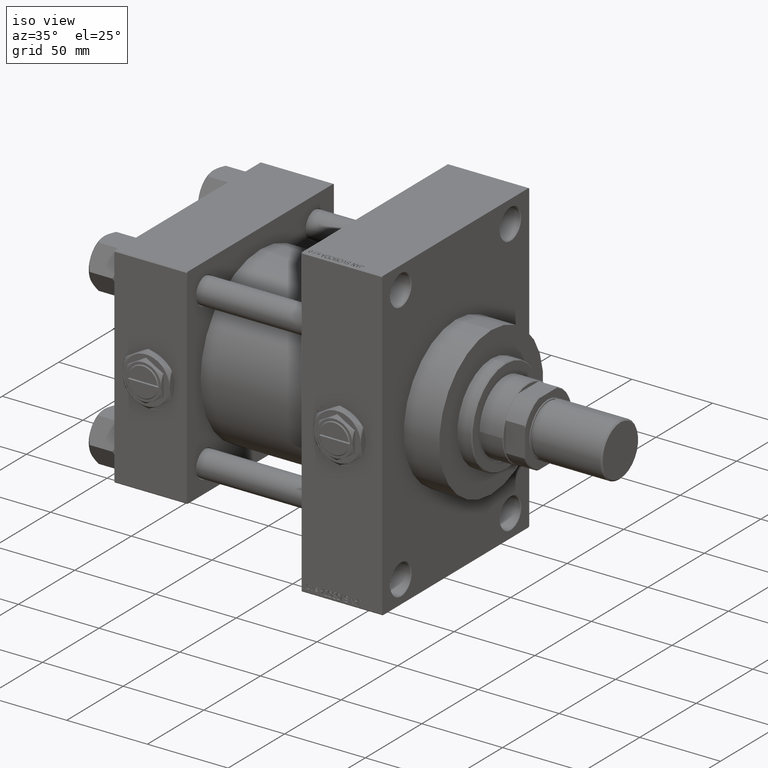
[diagram: clean part render]
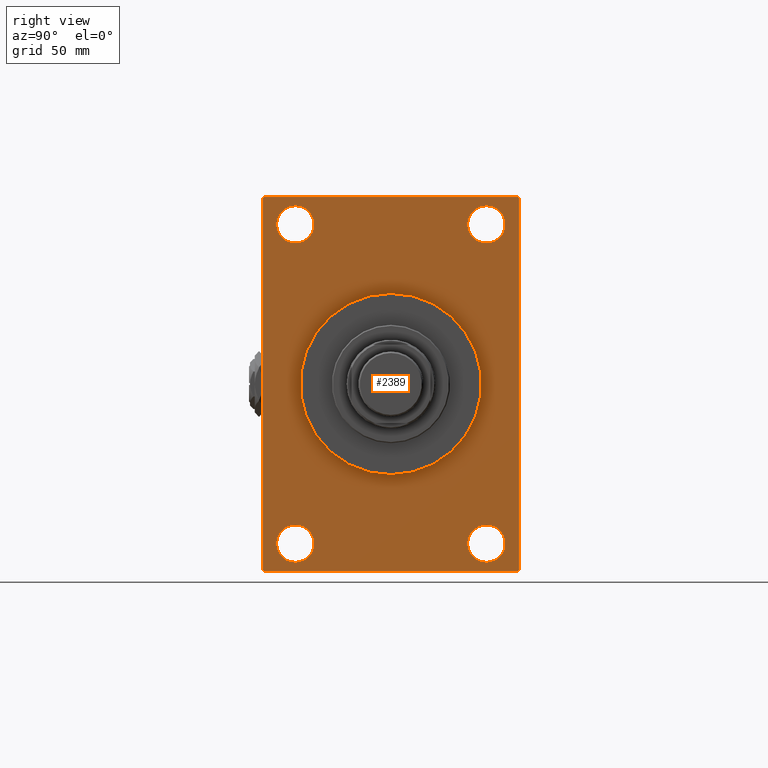
[diagram: tour spotlight — one face highlighted and labeled with its STEP entity id]
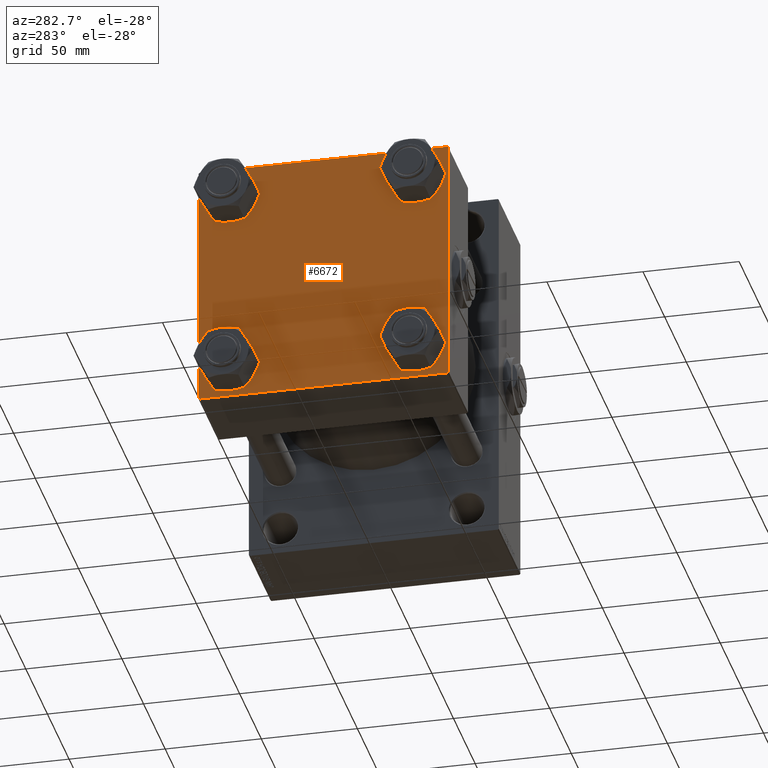
[diagram: tour spotlight — one face highlighted and labeled with its STEP entity id]
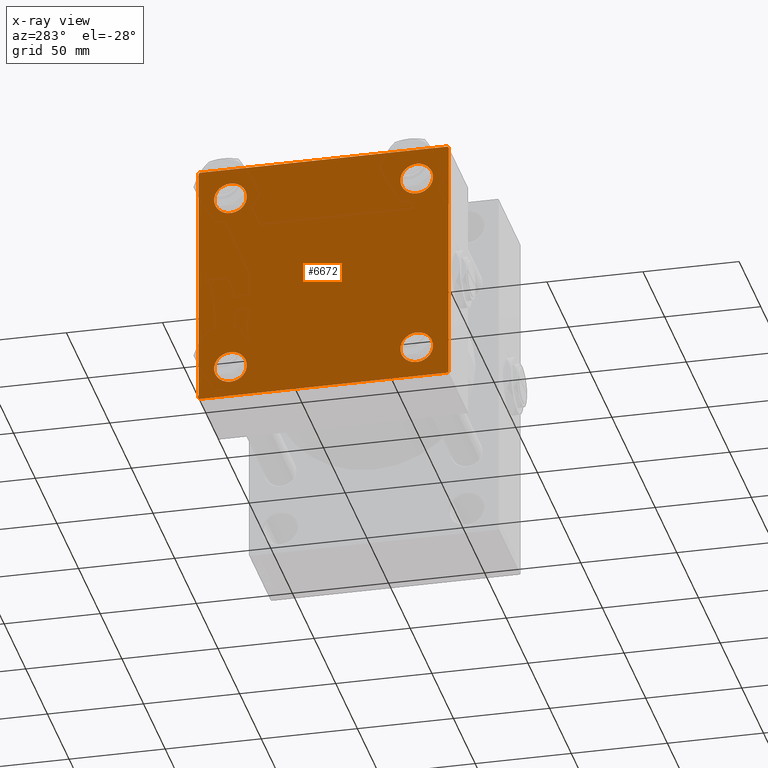
[diagram: x-ray of the same camera — body ghosted, this tour face saturated]
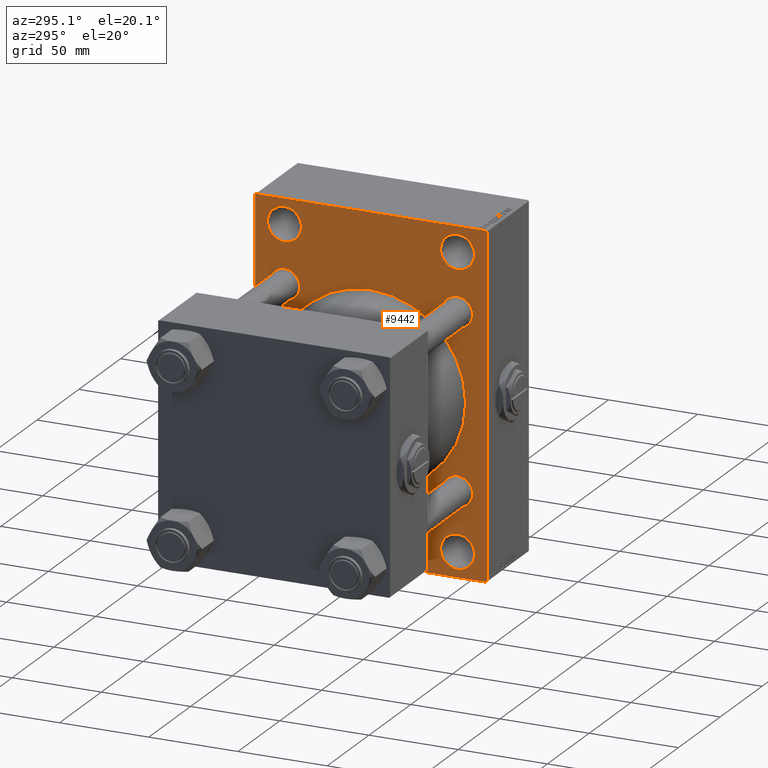
[diagram: tour spotlight — one face highlighted and labeled with its STEP entity id]
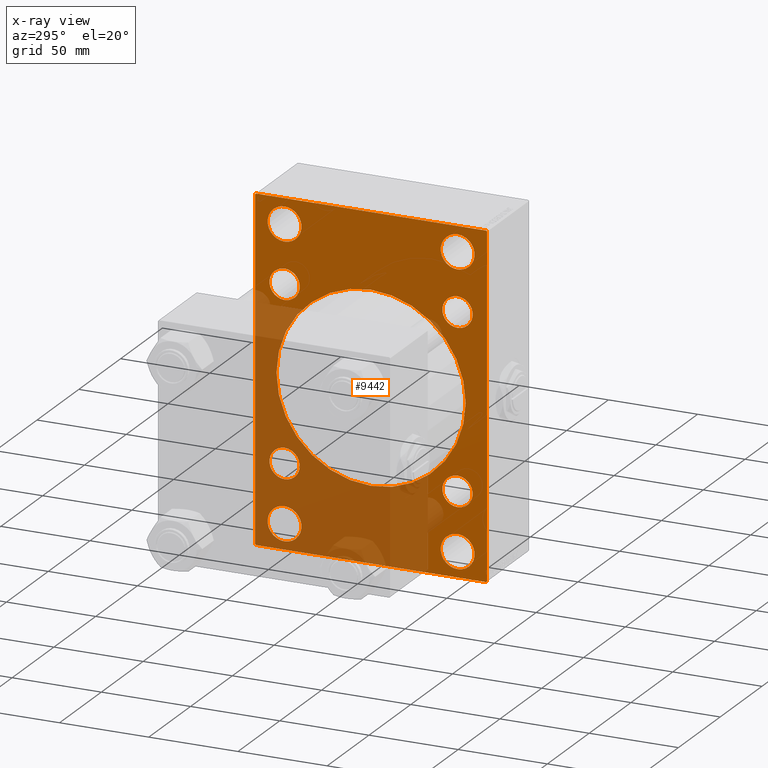
[diagram: x-ray of the same camera — body ghosted, this tour face saturated]
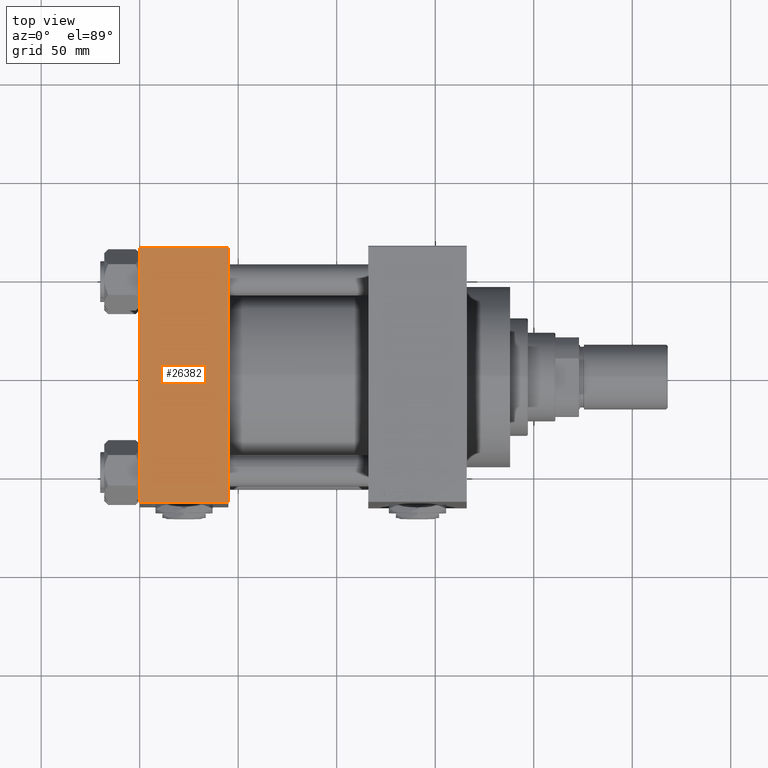
[diagram: tour spotlight — one face highlighted and labeled with its STEP entity id]
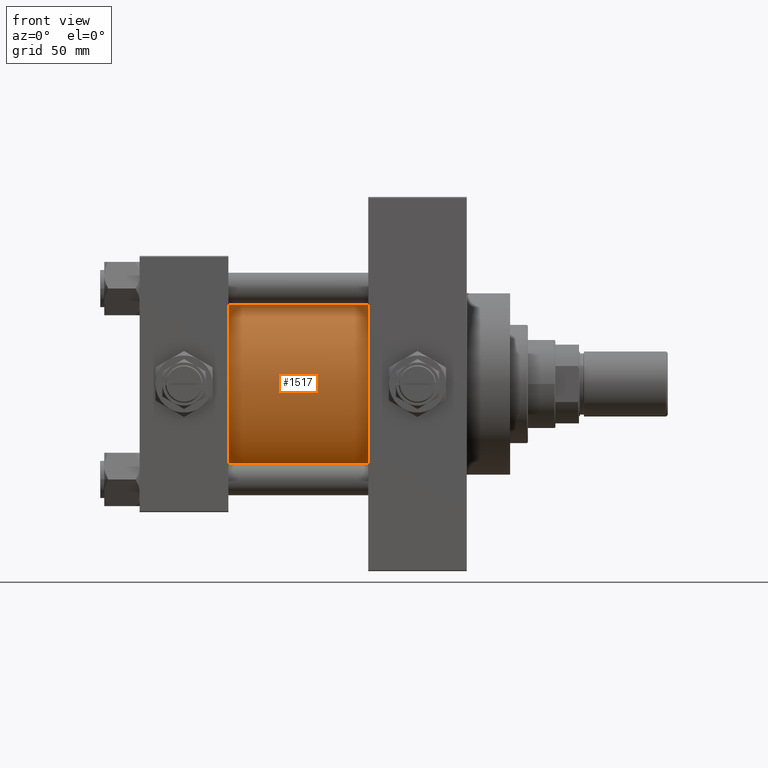
[diagram: tour spotlight — one face highlighted and labeled with its STEP entity id]
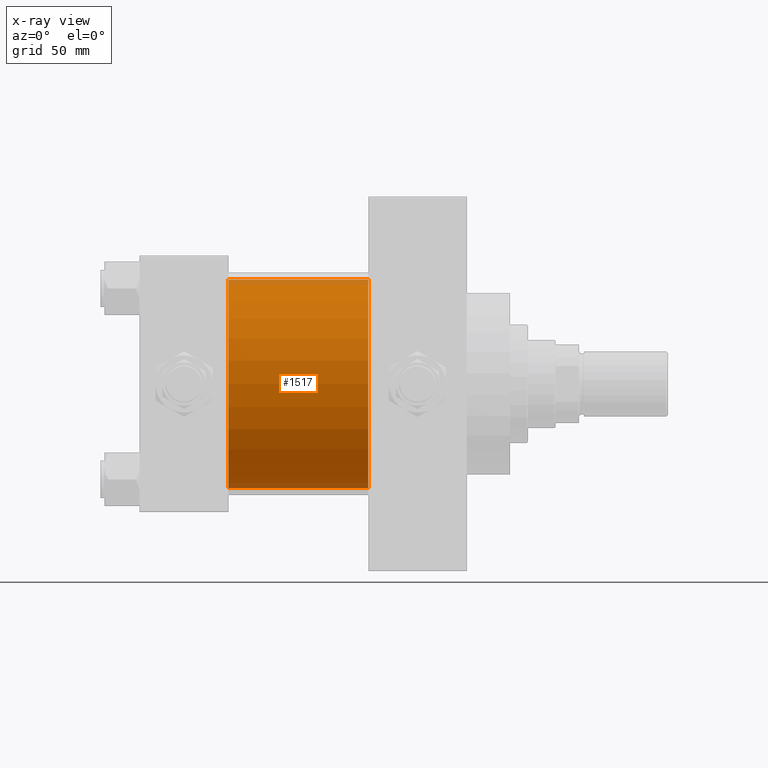
[diagram: x-ray of the same camera — body ghosted, this tour face saturated]
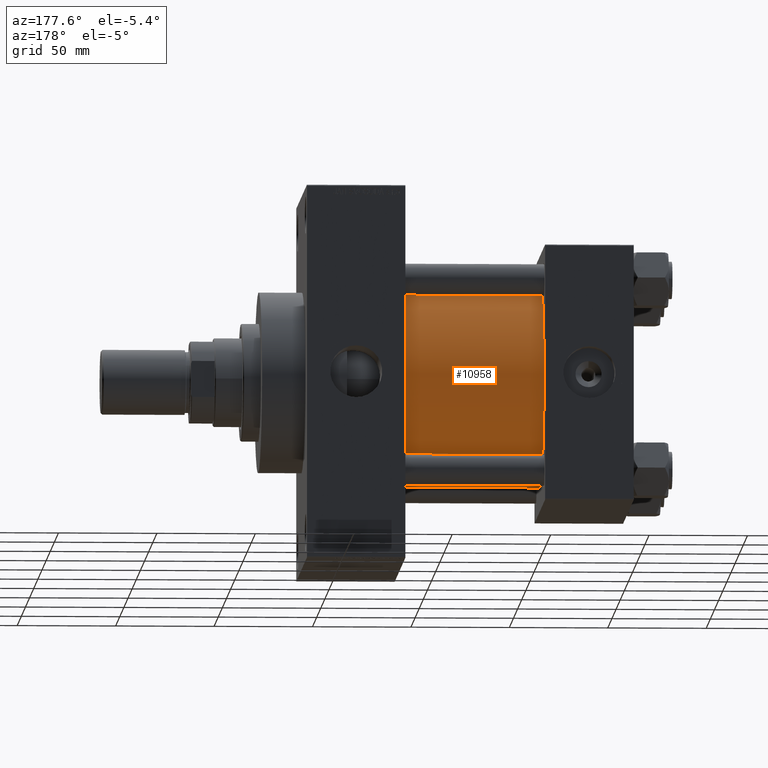
[diagram: tour spotlight — one face highlighted and labeled with its STEP entity id]
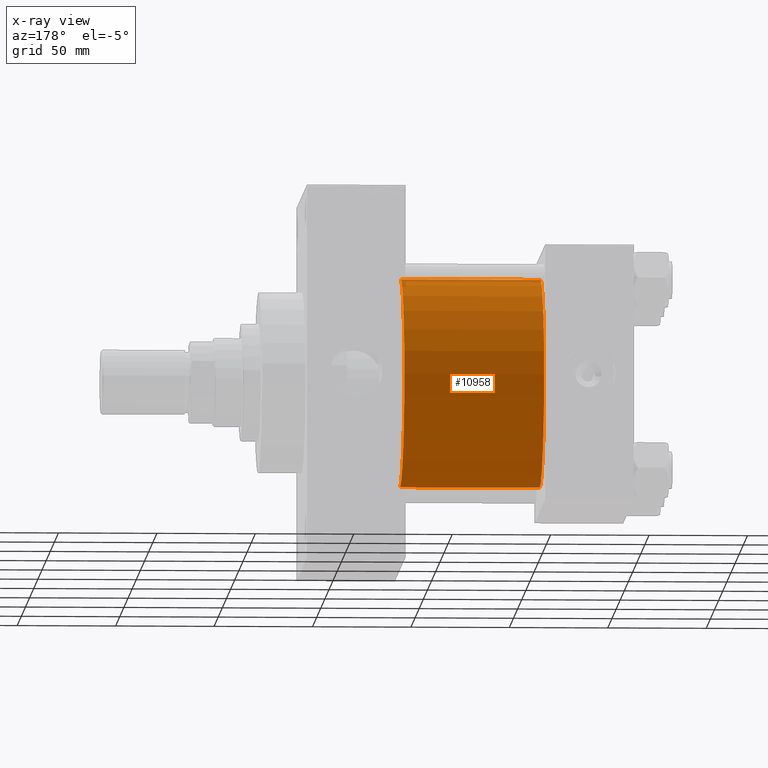
[diagram: x-ray of the same camera — body ghosted, this tour face saturated]
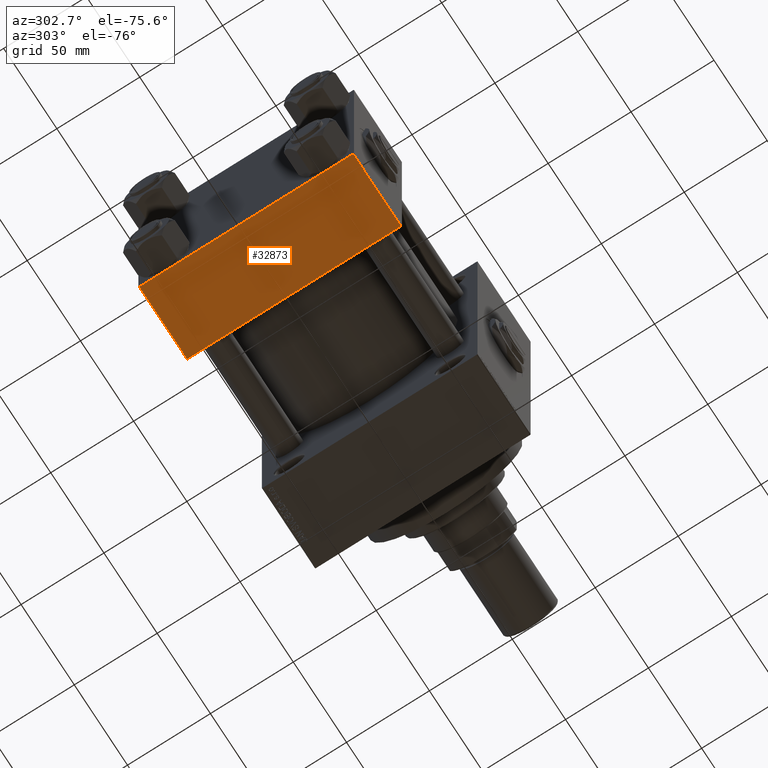
[diagram: tour spotlight — one face highlighted and labeled with its STEP entity id]
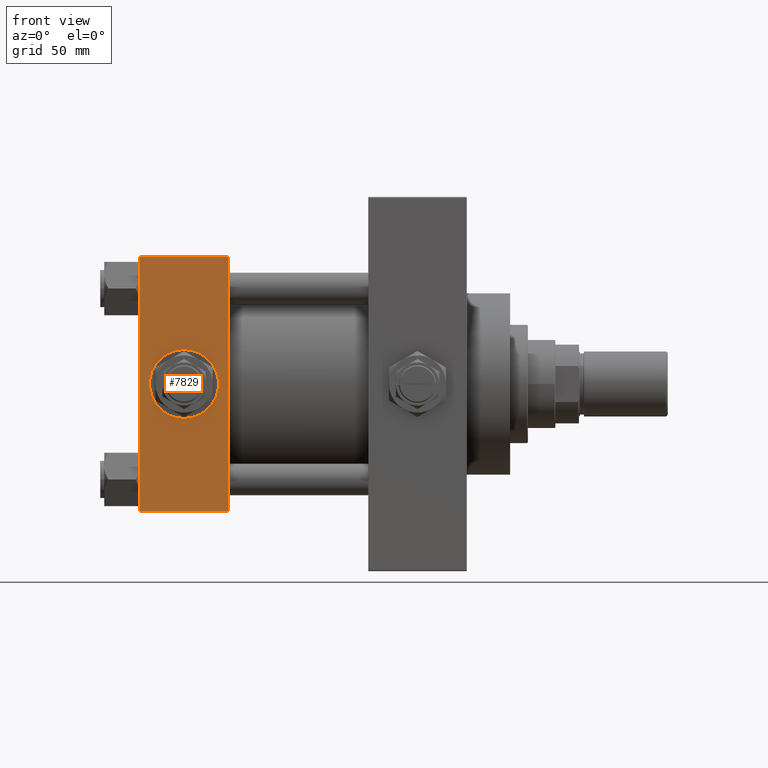
[diagram: tour spotlight — one face highlighted and labeled with its STEP entity id]
A machine part: a face-by-face anatomy tour. The part has 1267 B-rep faces; the first image is the clean iso view, then the 8 largest visible faces are spotlighted one at a time (largest first), each with its STEP entity span.

Face 1 — right view, entity #2389. In plain terms, the highlighted planar face has unit normal (-1, 0, 0).
Definition (entity closure, byte-faithful):
#507 = DIRECTION ( 'NONE',  ( 1.000000000000000000, 0.000000000000000000, 0.000000000000000000 ) ) ;
#704 = EDGE_LOOP ( 'NONE', ( #13913, #7381 ) ) ;
#819 = DIRECTION ( 'NONE',  ( 0.000000000000000000, 0.000000000000000000, 1.000000000000000000 ) ) ;
#1581 = DIRECTION ( 'NONE',  ( -1.000000000000000000, 0.000000000000000000, -0.000000000000000000 ) ) ;
#1967 = LINE ( 'NONE', #14144, #32189 ) ;
#2389 = ADVANCED_FACE ( 'NONE', ( #28015, #44025, #5634, #39713, #12505, #4637 ), #8945, .F. ) ;
#2414 = DIRECTION ( 'NONE',  ( -1.000000000000000000, 0.000000000000000000, -0.000000000000000000 ) ) ;
#2566 = ORIENTED_EDGE ( 'NONE', *, *, #7238, .T. ) ;
#3525 = ORIENTED_EDGE ( 'NONE', *, *, #21667, .T. ) ;
#3624 = AXIS2_PLACEMENT_3D ( 'NONE', #12986, #12736, #819 ) ;
#3662 = AXIS2_PLACEMENT_3D ( 'NONE', #35255, #23796, #39070 ) ;
#3971 = CIRCLE ( 'NONE', #32368, 9.500000000000063949 ) ;
#4295 = ORIENTED_EDGE ( 'NONE', *, *, #18072, .T. ) ;
#4405 = AXIS2_PLACEMENT_3D ( 'NONE', #48651, #2414, #40536 ) ;
#4637 = FACE_OUTER_BOUND ( 'NONE', #44432, .T. ) ;
#5237 = ORIENTED_EDGE ( 'NONE', *, *, #21528, .T. ) ;
#5634 = FACE_BOUND ( 'NONE', #42394, .T. ) ;
#5705 = LINE ( 'NONE', #12829, #43800 ) ;
#6199 = DIRECTION ( 'NONE',  ( 0.000000000000000000, 0.000000000000000000, 1.000000000000000000 ) ) ;
#6206 = CARTESIAN_POINT ( 'NONE',  ( 165.9999999999999716, 48.50000000000000711, -81.00000000000001421 ) ) ;
#6225 = AXIS2_PLACEMENT_3D ( 'NONE', #32495, #507, #16231 ) ;
#6305 = ORIENTED_EDGE ( 'NONE', *, *, #11738, .T. ) ;
#6434 = AXIS2_PLACEMENT_3D ( 'NONE', #16496, #20316, #43718 ) ;
#7230 = VERTEX_POINT ( 'NONE', #31934 ) ;
#7238 = EDGE_CURVE ( 'NONE', #39725, #15297, #15828, .T. ) ;
#7321 = ORIENTED_EDGE ( 'NONE', *, *, #11641, .F. ) ;
#7381 = ORIENTED_EDGE ( 'NONE', *, *, #20413, .T. ) ;
#7574 = EDGE_LOOP ( 'NONE', ( #50181, #4295 ) ) ;
#7613 = CARTESIAN_POINT ( 'NONE',  ( 165.9999999999999716, 64.49999999999998579, -95.00000000000001421 ) ) ;
#8196 = VERTEX_POINT ( 'NONE', #39633 ) ;
#8945 = PLANE ( 'NONE',  #38390 ) ;
#9110 = CIRCLE ( 'NONE', #25372, 46.00000000000000000 ) ;
#9608 = VERTEX_POINT ( 'NONE', #7613 ) ;
#9721 = VERTEX_POINT ( 'NONE', #36030 ) ;
#10391 = CIRCLE ( 'NONE', #26646, 9.500000000000063949 ) ;
#10470 = CARTESIAN_POINT ( 'NONE',  ( 165.9999999999999716, 48.50000000000000711, -71.49999999999995737 ) ) ;
#11306 = CIRCLE ( 'NONE', #50229, 9.500000000000063949 ) ;
#11445 = CARTESIAN_POINT ( 'NONE',  ( 165.9999999999999716, -65.00000000000001421, -94.50000000000002842 ) ) ;
#11641 = EDGE_CURVE ( 'NONE', #27175, #43194, #49244, .T. ) ;
#11678 = LINE ( 'NONE', #31995, #14967 ) ;
#11738 = EDGE_CURVE ( 'NONE', #13348, #7230, #41141, .T. ) ;
#11945 = VECTOR ( 'NONE', #46864, 1000.000000000000000 ) ;
#12208 = DIRECTION ( 'NONE',  ( 0.000000000000000000, 0.000000000000000000, -1.000000000000000000 ) ) ;
#12505 = FACE_BOUND ( 'NONE', #35408, .T. ) ;
#12736 = DIRECTION ( 'NONE',  ( -1.000000000000000000, 0.000000000000000000, -0.000000000000000000 ) ) ;
#12829 = CARTESIAN_POINT ( 'NONE',  ( 165.9999999999999716, 64.49999999999997158, 94.99999999999997158 ) ) ;
#12986 = CARTESIAN_POINT ( 'NONE',  ( 165.9999999999999716, -48.50000000000000000, 81.00000000000000000 ) ) ;
#13015 = VERTEX_POINT ( 'NONE', #47061 ) ;
#13079 = VERTEX_POINT ( 'NONE', #32811 ) ;
#13189 = CARTESIAN_POINT ( 'NONE',  ( 165.9999999999999716, -65.00000000000001421, 94.49999999999997158 ) ) ;
#13348 = VERTEX_POINT ( 'NONE', #11445 ) ;
#13566 = DIRECTION ( 'NONE',  ( 0.000000000000000000, 0.000000000000000000, 1.000000000000000000 ) ) ;
#13817 = CARTESIAN_POINT ( 'NONE',  ( 165.9999999999999716, 48.50000000000000711, 81.00000000000000000 ) ) ;
#13913 = ORIENTED_EDGE ( 'NONE', *, *, #35421, .T. ) ;
#14120 = CIRCLE ( 'NONE', #3624, 9.500000000000063949 ) ;
#14144 = CARTESIAN_POINT ( 'NONE',  ( 165.9999999999999716, -65.00000000000001421, 94.99999999999997158 ) ) ;
#14158 = ORIENTED_EDGE ( 'NONE', *, *, #15986, .T. ) ;
#14343 = VECTOR ( 'NONE', #17988, 1000.000000000000114 ) ;
#14967 = VECTOR ( 'NONE', #24345, 1000.000000000000000 ) ;
#15275 = DIRECTION ( 'NONE',  ( -0.000000000000000000, -0.7071067811865378028, -0.7071067811865573427 ) ) ;
#15297 = VERTEX_POINT ( 'NONE', #10470 ) ;
#15827 = AXIS2_PLACEMENT_3D ( 'NONE', #6206, #32390, #13566 ) ;
#15828 = CIRCLE ( 'NONE', #3662, 9.500000000000063949 ) ;
#15986 = EDGE_CURVE ( 'NONE', #8196, #9721, #24453, .T. ) ;
#16015 = CARTESIAN_POINT ( 'NONE',  ( 165.9999999999999716, 0.000000000000000000, 0.000000000000000000 ) ) ;
#16231 = DIRECTION ( 'NONE',  ( 0.000000000000000000, 0.000000000000000000, -1.000000000000000000 ) ) ;
#16405 = EDGE_CURVE ( 'NONE', #13079, #41808, #27417, .T. ) ;
#16496 = CARTESIAN_POINT ( 'NONE',  ( 165.9999999999999716, -48.49999999999999289, -81.00000000000001421 ) ) ;
#17036 = ORIENTED_EDGE ( 'NONE', *, *, #19256, .T. ) ;
#17397 = EDGE_LOOP ( 'NONE', ( #37339, #25296 ) ) ;
#17677 = VERTEX_POINT ( 'NONE', #41077 ) ;
#17988 = DIRECTION ( 'NONE',  ( 0.000000000000000000, 0.7071067811865474617, -0.7071067811865474617 ) ) ;
#18072 = EDGE_CURVE ( 'NONE', #17677, #41797, #10391, .T. ) ;
#18250 = CIRCLE ( 'NONE', #15827, 9.500000000000063949 ) ;
#19256 = EDGE_CURVE ( 'NONE', #9721, #42867, #44787, .T. ) ;
#19382 = EDGE_CURVE ( 'NONE', #42881, #24590, #11306, .T. ) ;
#20316 = DIRECTION ( 'NONE',  ( -1.000000000000000000, 0.000000000000000000, -0.000000000000000000 ) ) ;
#20413 = EDGE_CURVE ( 'NONE', #38025, #13015, #30827, .T. ) ;
#20635 = CARTESIAN_POINT ( 'NONE',  ( 165.9999999999999716, 64.99999999999997158, 94.99999999999997158 ) ) ;
#21528 = EDGE_CURVE ( 'NONE', #9608, #41808, #45924, .T. ) ;
#21667 = EDGE_CURVE ( 'NONE', #13079, #8196, #5705, .T. ) ;
#21804 = CARTESIAN_POINT ( 'NONE',  ( 165.9999999999999716, -64.50000000000001421, -95.00000000000002842 ) ) ;
#21880 = VECTOR ( 'NONE', #23767, 1000.000000000000000 ) ;
#22331 = CARTESIAN_POINT ( 'NONE',  ( 165.9999999999999716, 64.99999999999998579, -94.50000000000002842 ) ) ;
#23767 = DIRECTION ( 'NONE',  ( -0.000000000000000000, 0.7071067811865573427, 0.7071067811865378028 ) ) ;
#23796 = DIRECTION ( 'NONE',  ( -1.000000000000000000, 0.000000000000000000, -0.000000000000000000 ) ) ;
#23934 = ORIENTED_EDGE ( 'NONE', *, *, #31649, .F. ) ;
#24188 = VECTOR ( 'NONE', #15275, 1000.000000000000000 ) ;
#24345 = DIRECTION ( 'NONE',  ( 0.000000000000000000, -1.000000000000000000, -1.067522139062650425E-16 ) ) ;
#24453 = LINE ( 'NONE', #20635, #11945 ) ;
#24511 = DIRECTION ( 'NONE',  ( 0.000000000000000000, -0.7071067811865474617, 0.7071067811865474617 ) ) ;
#24590 = VERTEX_POINT ( 'NONE', #39697 ) ;
#25296 = ORIENTED_EDGE ( 'NONE', *, *, #19382, .T. ) ;
#25372 = AXIS2_PLACEMENT_3D ( 'NONE', #16015, #47034, #12208 ) ;
#26646 = AXIS2_PLACEMENT_3D ( 'NONE', #13817, #33901, #6199 ) ;
#26924 = DIRECTION ( 'NONE',  ( 0.000000000000000000, 7.304098846218135653E-17, -1.000000000000000000 ) ) ;
#27175 = VERTEX_POINT ( 'NONE', #48225 ) ;
#27417 = LINE ( 'NONE', #31492, #47662 ) ;
#28015 = FACE_BOUND ( 'NONE', #17397, .T. ) ;
#30827 = CIRCLE ( 'NONE', #6434, 9.500000000000063949 ) ;
#31492 = CARTESIAN_POINT ( 'NONE',  ( 165.9999999999999716, 64.99999999999997158, 94.99999999999997158 ) ) ;
#31649 = EDGE_CURVE ( 'NONE', #43194, #27175, #9110, .T. ) ;
#31934 = CARTESIAN_POINT ( 'NONE',  ( 165.9999999999999716, -64.50000000000001421, -95.00000000000002842 ) ) ;
#31995 = CARTESIAN_POINT ( 'NONE',  ( 165.9999999999999716, 64.99999999999998579, -95.00000000000001421 ) ) ;
#32189 = VECTOR ( 'NONE', #32978, 1000.000000000000000 ) ;
#32268 = DIRECTION ( 'NONE',  ( 0.000000000000000000, 0.000000000000000000, 1.000000000000000000 ) ) ;
#32368 = AXIS2_PLACEMENT_3D ( 'NONE', #44508, #41197, #48547 ) ;
#32390 = DIRECTION ( 'NONE',  ( -1.000000000000000000, 0.000000000000000000, -0.000000000000000000 ) ) ;
#32495 = CARTESIAN_POINT ( 'NONE',  ( 165.9999999999999716, 0.000000000000000000, 0.000000000000000000 ) ) ;
#32811 = CARTESIAN_POINT ( 'NONE',  ( 165.9999999999999716, 64.99999999999997158, 94.49999999999997158 ) ) ;
#32978 = DIRECTION ( 'NONE',  ( 0.000000000000000000, 0.000000000000000000, -1.000000000000000000 ) ) ;
#33055 = ORIENTED_EDGE ( 'NONE', *, *, #43797, .T. ) ;
#33901 = DIRECTION ( 'NONE',  ( -1.000000000000000000, 0.000000000000000000, -0.000000000000000000 ) ) ;
#34578 = ORIENTED_EDGE ( 'NONE', *, *, #37900, .F. ) ;
#35255 = CARTESIAN_POINT ( 'NONE',  ( 165.9999999999999716, 48.50000000000000711, -81.00000000000001421 ) ) ;
#35408 = EDGE_LOOP ( 'NONE', ( #23934, #7321 ) ) ;
#35421 = EDGE_CURVE ( 'NONE', #13015, #38025, #38525, .T. ) ;
#35651 = CARTESIAN_POINT ( 'NONE',  ( 165.9999999999999716, 0.000000000000000000, 0.000000000000000000 ) ) ;
#36030 = CARTESIAN_POINT ( 'NONE',  ( 165.9999999999999716, -64.50000000000002842, 94.99999999999997158 ) ) ;
#37339 = ORIENTED_EDGE ( 'NONE', *, *, #38448, .T. ) ;
#37900 = EDGE_CURVE ( 'NONE', #9608, #7230, #11678, .T. ) ;
#38025 = VERTEX_POINT ( 'NONE', #47732 ) ;
#38390 = AXIS2_PLACEMENT_3D ( 'NONE', #35651, #1581, #43529 ) ;
#38448 = EDGE_CURVE ( 'NONE', #24590, #42881, #14120, .T. ) ;
#38525 = CIRCLE ( 'NONE', #4405, 9.500000000000063949 ) ;
#38584 = ORIENTED_EDGE ( 'NONE', *, *, #16405, .F. ) ;
#39070 = DIRECTION ( 'NONE',  ( 0.000000000000000000, 0.000000000000000000, 1.000000000000000000 ) ) ;
#39633 = CARTESIAN_POINT ( 'NONE',  ( 165.9999999999999716, 64.49999999999997158, 94.99999999999997158 ) ) ;
#39645 = CARTESIAN_POINT ( 'NONE',  ( 165.9999999999999716, -48.50000000000000000, 81.00000000000000000 ) ) ;
#39697 = CARTESIAN_POINT ( 'NONE',  ( 165.9999999999999716, -48.50000000000000000, 71.49999999999994316 ) ) ;
#39713 = FACE_BOUND ( 'NONE', #7574, .T. ) ;
#39725 = VERTEX_POINT ( 'NONE', #44968 ) ;
#40141 = DIRECTION ( 'NONE',  ( -1.000000000000000000, 0.000000000000000000, -0.000000000000000000 ) ) ;
#40311 = EDGE_CURVE ( 'NONE', #15297, #39725, #18250, .T. ) ;
#40536 = DIRECTION ( 'NONE',  ( 0.000000000000000000, 0.000000000000000000, 1.000000000000000000 ) ) ;
#41077 = CARTESIAN_POINT ( 'NONE',  ( 165.9999999999999716, 48.50000000000000711, 90.50000000000007105 ) ) ;
#41141 = LINE ( 'NONE', #21804, #14343 ) ;
#41197 = DIRECTION ( 'NONE',  ( -1.000000000000000000, 0.000000000000000000, -0.000000000000000000 ) ) ;
#41797 = VERTEX_POINT ( 'NONE', #49527 ) ;
#41808 = VERTEX_POINT ( 'NONE', #22331 ) ;
#42394 = EDGE_LOOP ( 'NONE', ( #2566, #49500 ) ) ;
#42867 = VERTEX_POINT ( 'NONE', #13189 ) ;
#42881 = VERTEX_POINT ( 'NONE', #43467 ) ;
#43100 = CARTESIAN_POINT ( 'NONE',  ( 165.9999999999999716, 64.99999999999998579, -94.50000000000002842 ) ) ;
#43194 = VERTEX_POINT ( 'NONE', #47640 ) ;
#43467 = CARTESIAN_POINT ( 'NONE',  ( 165.9999999999999716, -48.50000000000000000, 90.50000000000007105 ) ) ;
#43529 = DIRECTION ( 'NONE',  ( -0.000000000000000000, 0.000000000000000000, 1.000000000000000000 ) ) ;
#43718 = DIRECTION ( 'NONE',  ( 0.000000000000000000, 0.000000000000000000, 1.000000000000000000 ) ) ;
#43797 = EDGE_CURVE ( 'NONE', #42867, #13348, #1967, .T. ) ;
#43800 = VECTOR ( 'NONE', #24511, 1000.000000000000114 ) ;
#44025 = FACE_BOUND ( 'NONE', #704, .T. ) ;
#44432 = EDGE_LOOP ( 'NONE', ( #33055, #6305, #34578, #5237, #38584, #3525, #14158, #17036 ) ) ;
#44508 = CARTESIAN_POINT ( 'NONE',  ( 165.9999999999999716, 48.50000000000000711, 81.00000000000000000 ) ) ;
#44787 = LINE ( 'NONE', #46779, #24188 ) ;
#44968 = CARTESIAN_POINT ( 'NONE',  ( 165.9999999999999716, 48.50000000000000711, -90.50000000000008527 ) ) ;
#45924 = LINE ( 'NONE', #43100, #21880 ) ;
#46779 = CARTESIAN_POINT ( 'NONE',  ( 165.9999999999999716, -65.00000000000001421, 94.49999999999997158 ) ) ;
#46864 = DIRECTION ( 'NONE',  ( 0.000000000000000000, -1.000000000000000000, 0.000000000000000000 ) ) ;
#47034 = DIRECTION ( 'NONE',  ( 1.000000000000000000, 0.000000000000000000, 0.000000000000000000 ) ) ;
#47061 = CARTESIAN_POINT ( 'NONE',  ( 165.9999999999999716, -48.49999999999999289, -90.50000000000008527 ) ) ;
#47640 = CARTESIAN_POINT ( 'NONE',  ( 165.9999999999999716, 0.000000000000000000, 46.00000000000000000 ) ) ;
#47662 = VECTOR ( 'NONE', #26924, 1000.000000000000000 ) ;
#47732 = CARTESIAN_POINT ( 'NONE',  ( 165.9999999999999716, -48.49999999999999289, -71.49999999999995737 ) ) ;
#48225 = CARTESIAN_POINT ( 'NONE',  ( 165.9999999999999716, 5.633375276077824704E-15, -46.00000000000000000 ) ) ;
#48547 = DIRECTION ( 'NONE',  ( 0.000000000000000000, 0.000000000000000000, 1.000000000000000000 ) ) ;
#48651 = CARTESIAN_POINT ( 'NONE',  ( 165.9999999999999716, -48.49999999999999289, -81.00000000000001421 ) ) ;
#49210 = EDGE_CURVE ( 'NONE', #41797, #17677, #3971, .T. ) ;
#49244 = CIRCLE ( 'NONE', #6225, 46.00000000000000000 ) ;
#49500 = ORIENTED_EDGE ( 'NONE', *, *, #40311, .T. ) ;
#49527 = CARTESIAN_POINT ( 'NONE',  ( 165.9999999999999716, 48.50000000000000711, 71.49999999999994316 ) ) ;
#50181 = ORIENTED_EDGE ( 'NONE', *, *, #49210, .T. ) ;
#50229 = AXIS2_PLACEMENT_3D ( 'NONE', #39645, #40141, #32268 ) ;

Face 2 — auxiliary view, entity #6672. An x-ray twin of the same camera follows (body ghosted, this face saturated) — the face is partly hidden behind the body. In plain terms, the highlighted planar face has unit normal (-1, 0, 0).
Definition (entity closure, byte-faithful):
#204 = ORIENTED_EDGE ( 'NONE', *, *, #2177, .T. ) ;
#1106 = VERTEX_POINT ( 'NONE', #16875 ) ;
#2177 = EDGE_CURVE ( 'NONE', #24913, #41398, #5886, .T. ) ;
#2743 = EDGE_LOOP ( 'NONE', ( #28609, #48586 ) ) ;
#2780 = AXIS2_PLACEMENT_3D ( 'NONE', #33016, #37332, #33515 ) ;
#3013 = VERTEX_POINT ( 'NONE', #42916 ) ;
#3027 = LINE ( 'NONE', #18512, #29654 ) ;
#3476 = CARTESIAN_POINT ( 'NONE',  ( 0.000000000000000000, 64.74999999999997158, -64.74999999999997158 ) ) ;
#3606 = DIRECTION ( 'NONE',  ( 0.000000000000000000, -0.7071067811865279218, 0.7071067811865671127 ) ) ;
#3859 = DIRECTION ( 'NONE',  ( 0.000000000000000000, 0.000000000000000000, 1.000000000000000000 ) ) ;
#4103 = CARTESIAN_POINT ( 'NONE',  ( 0.000000000000000000, 48.45000000000000995, -48.45000000000001705 ) ) ;
#4174 = ORIENTED_EDGE ( 'NONE', *, *, #9067, .T. ) ;
#4185 = EDGE_CURVE ( 'NONE', #24631, #21398, #22217, .T. ) ;
#4384 = CARTESIAN_POINT ( 'NONE',  ( 0.000000000000000000, -48.44999999999999574, 48.45000000000003126 ) ) ;
#4541 = DIRECTION ( 'NONE',  ( 0.000000000000000000, 0.000000000000000000, 1.000000000000000000 ) ) ;
#5507 = CARTESIAN_POINT ( 'NONE',  ( 0.000000000000000000, -64.49999999999997158, 65.00000000000000000 ) ) ;
#5886 = CIRCLE ( 'NONE', #9952, 8.500000000000007105 ) ;
#6330 = DIRECTION ( 'NONE',  ( -0.000000000000000000, 0.7071067811865672237, 0.7071067811865279218 ) ) ;
#6672 = ADVANCED_FACE ( 'NONE', ( #29895, #46403, #38777, #23262, #6765 ), #49715, .T. ) ;
#6765 = FACE_OUTER_BOUND ( 'NONE', #44945, .T. ) ;
#7763 = ORIENTED_EDGE ( 'NONE', *, *, #10823, .F. ) ;
#7859 = CARTESIAN_POINT ( 'NONE',  ( 0.000000000000000000, -48.44999999999999574, 39.95000000000001705 ) ) ;
#8033 = VECTOR ( 'NONE', #18957, 1000.000000000000114 ) ;
#8050 = CARTESIAN_POINT ( 'NONE',  ( 0.000000000000000000, -48.44999999999999574, -48.45000000000003126 ) ) ;
#8297 = ORIENTED_EDGE ( 'NONE', *, *, #19653, .T. ) ;
#9067 = EDGE_CURVE ( 'NONE', #25850, #49577, #3027, .T. ) ;
#9949 = VERTEX_POINT ( 'NONE', #14918 ) ;
#9952 = AXIS2_PLACEMENT_3D ( 'NONE', #48894, #14075, #41295 ) ;
#10823 = EDGE_CURVE ( 'NONE', #25850, #34008, #47238, .T. ) ;
#10845 = EDGE_CURVE ( 'NONE', #25632, #26202, #31378, .T. ) ;
#11083 = CARTESIAN_POINT ( 'NONE',  ( 0.000000000000000000, 0.000000000000000000, 0.000000000000000000 ) ) ;
#11804 = EDGE_CURVE ( 'NONE', #27169, #3013, #38077, .T. ) ;
#11874 = VECTOR ( 'NONE', #16223, 1000.000000000000000 ) ;
#13059 = CARTESIAN_POINT ( 'NONE',  ( 0.000000000000000000, -48.44999999999999574, 56.95000000000003837 ) ) ;
#13150 = DIRECTION ( 'NONE',  ( 1.000000000000000000, -0.000000000000000000, 0.000000000000000000 ) ) ;
#13520 = ORIENTED_EDGE ( 'NONE', *, *, #38912, .T. ) ;
#13603 = EDGE_CURVE ( 'NONE', #45585, #9949, #41143, .T. ) ;
#14075 = DIRECTION ( 'NONE',  ( 1.000000000000000000, -0.000000000000000000, 0.000000000000000000 ) ) ;
#14918 = CARTESIAN_POINT ( 'NONE',  ( 0.000000000000000000, -64.49999999999994316, -65.00000000000000000 ) ) ;
#15048 = AXIS2_PLACEMENT_3D ( 'NONE', #20771, #13150, #36291 ) ;
#16223 = DIRECTION ( 'NONE',  ( 0.000000000000000000, 0.000000000000000000, -1.000000000000000000 ) ) ;
#16272 = DIRECTION ( 'NONE',  ( 1.000000000000000000, -0.000000000000000000, 0.000000000000000000 ) ) ;
#16632 = VERTEX_POINT ( 'NONE', #41881 ) ;
#16875 = CARTESIAN_POINT ( 'NONE',  ( 0.000000000000000000, 65.00000000000000000, -64.49999999999995737 ) ) ;
#16986 = CARTESIAN_POINT ( 'NONE',  ( 0.000000000000000000, -48.44999999999999574, -56.95000000000003837 ) ) ;
#17750 = EDGE_LOOP ( 'NONE', ( #41249, #204 ) ) ;
#18512 = CARTESIAN_POINT ( 'NONE',  ( -0.000000000000000000, -64.74999999999819522, 64.75000000000179057 ) ) ;
#18582 = VECTOR ( 'NONE', #24129, 1000.000000000000000 ) ;
#18957 = DIRECTION ( 'NONE',  ( -0.000000000000000000, -0.7071067811865474617, -0.7071067811865474617 ) ) ;
#19306 = VECTOR ( 'NONE', #3606, 1000.000000000000000 ) ;
#19475 = EDGE_CURVE ( 'NONE', #27169, #49577, #23634, .T. ) ;
#19622 = DIRECTION ( 'NONE',  ( 0.000000000000000000, 0.000000000000000000, 1.000000000000000000 ) ) ;
#19653 = EDGE_CURVE ( 'NONE', #1106, #45585, #26591, .T. ) ;
#19874 = DIRECTION ( 'NONE',  ( 1.000000000000000000, -0.000000000000000000, 0.000000000000000000 ) ) ;
#20771 = CARTESIAN_POINT ( 'NONE',  ( 0.000000000000000000, 48.45000000000000995, 48.45000000000001705 ) ) ;
#20810 = VECTOR ( 'NONE', #41896, 1000.000000000000114 ) ;
#20930 = ORIENTED_EDGE ( 'NONE', *, *, #19475, .F. ) ;
#21398 = VERTEX_POINT ( 'NONE', #24570 ) ;
#22017 = VECTOR ( 'NONE', #39325, 1000.000000000000000 ) ;
#22217 = CIRCLE ( 'NONE', #47350, 8.500000000000007105 ) ;
#23262 = FACE_BOUND ( 'NONE', #2743, .T. ) ;
#23634 = LINE ( 'NONE', #32520, #18582 ) ;
#23656 = ORIENTED_EDGE ( 'NONE', *, *, #11804, .T. ) ;
#23780 = DIRECTION ( 'NONE',  ( 0.000000000000000000, 0.000000000000000000, 1.000000000000000000 ) ) ;
#24100 = CARTESIAN_POINT ( 'NONE',  ( 0.000000000000000000, -65.00000000000000000, 65.00000000000000000 ) ) ;
#24129 = DIRECTION ( 'NONE',  ( 0.000000000000000000, -1.000000000000000000, -1.067522139062650425E-16 ) ) ;
#24570 = CARTESIAN_POINT ( 'NONE',  ( 0.000000000000000000, 48.45000000000000995, 56.95000000000002416 ) ) ;
#24631 = VERTEX_POINT ( 'NONE', #27509 ) ;
#24660 = CIRCLE ( 'NONE', #2780, 8.500000000000007105 ) ;
#24913 = VERTEX_POINT ( 'NONE', #16986 ) ;
#25099 = EDGE_CURVE ( 'NONE', #3013, #1106, #45461, .T. ) ;
#25345 = CARTESIAN_POINT ( 'NONE',  ( 0.000000000000000000, 64.49999999999997158, -64.99999999999998579 ) ) ;
#25632 = VERTEX_POINT ( 'NONE', #13059 ) ;
#25850 = VERTEX_POINT ( 'NONE', #46842 ) ;
#25875 = CARTESIAN_POINT ( 'NONE',  ( 0.000000000000000000, 65.00000000000000000, -64.99999999999998579 ) ) ;
#26202 = VERTEX_POINT ( 'NONE', #7859 ) ;
#26591 = LINE ( 'NONE', #3476, #8033 ) ;
#26608 = DIRECTION ( 'NONE',  ( 1.000000000000000000, -0.000000000000000000, 0.000000000000000000 ) ) ;
#26631 = CARTESIAN_POINT ( 'NONE',  ( 0.000000000000000000, 64.74999999999998579, 64.74999999999998579 ) ) ;
#27169 = VERTEX_POINT ( 'NONE', #32740 ) ;
#27504 = CARTESIAN_POINT ( 'NONE',  ( 0.000000000000000000, -65.00000000000000000, -64.49999999999991473 ) ) ;
#27509 = CARTESIAN_POINT ( 'NONE',  ( 0.000000000000000000, 48.45000000000000995, 39.95000000000000284 ) ) ;
#27633 = CARTESIAN_POINT ( 'NONE',  ( 0.000000000000000000, 65.00000000000000000, 65.00000000000001421 ) ) ;
#28609 = ORIENTED_EDGE ( 'NONE', *, *, #37328, .T. ) ;
#28759 = CARTESIAN_POINT ( 'NONE',  ( 0.000000000000000000, 48.45000000000000995, -56.95000000000002416 ) ) ;
#29654 = VECTOR ( 'NONE', #6330, 1000.000000000000000 ) ;
#29895 = FACE_BOUND ( 'NONE', #34021, .T. ) ;
#31378 = CIRCLE ( 'NONE', #46824, 8.500000000000007105 ) ;
#31545 = AXIS2_PLACEMENT_3D ( 'NONE', #4103, #16272, #3859 ) ;
#32520 = CARTESIAN_POINT ( 'NONE',  ( 0.000000000000000000, 65.00000000000000000, 65.00000000000001421 ) ) ;
#32740 = CARTESIAN_POINT ( 'NONE',  ( 0.000000000000000000, 64.49999999999997158, 65.00000000000001421 ) ) ;
#32962 = VECTOR ( 'NONE', #49253, 1000.000000000000000 ) ;
#33016 = CARTESIAN_POINT ( 'NONE',  ( 0.000000000000000000, 48.45000000000000995, -48.45000000000001705 ) ) ;
#33515 = DIRECTION ( 'NONE',  ( 0.000000000000000000, 0.000000000000000000, 1.000000000000000000 ) ) ;
#34008 = VERTEX_POINT ( 'NONE', #27504 ) ;
#34021 = EDGE_LOOP ( 'NONE', ( #46337, #48691 ) ) ;
#34180 = ORIENTED_EDGE ( 'NONE', *, *, #13603, .T. ) ;
#34278 = EDGE_LOOP ( 'NONE', ( #13520, #47916 ) ) ;
#35323 = CIRCLE ( 'NONE', #15048, 8.500000000000007105 ) ;
#36069 = AXIS2_PLACEMENT_3D ( 'NONE', #11083, #45400, #42347 ) ;
#36291 = DIRECTION ( 'NONE',  ( 0.000000000000000000, 0.000000000000000000, 1.000000000000000000 ) ) ;
#37328 = EDGE_CURVE ( 'NONE', #21398, #24631, #35323, .T. ) ;
#37332 = DIRECTION ( 'NONE',  ( 1.000000000000000000, -0.000000000000000000, 0.000000000000000000 ) ) ;
#37414 = LINE ( 'NONE', #41481, #19306 ) ;
#38077 = LINE ( 'NONE', #26631, #20810 ) ;
#38777 = FACE_BOUND ( 'NONE', #34278, .T. ) ;
#38883 = AXIS2_PLACEMENT_3D ( 'NONE', #8050, #42870, #23780 ) ;
#38912 = EDGE_CURVE ( 'NONE', #16632, #42646, #24660, .T. ) ;
#39119 = DIRECTION ( 'NONE',  ( 1.000000000000000000, -0.000000000000000000, 0.000000000000000000 ) ) ;
#39325 = DIRECTION ( 'NONE',  ( 0.000000000000000000, 0.000000000000000000, -1.000000000000000000 ) ) ;
#39614 = CARTESIAN_POINT ( 'NONE',  ( 0.000000000000000000, -48.44999999999999574, 48.45000000000003126 ) ) ;
#41143 = LINE ( 'NONE', #25875, #32962 ) ;
#41249 = ORIENTED_EDGE ( 'NONE', *, *, #48683, .T. ) ;
#41280 = CIRCLE ( 'NONE', #31545, 8.500000000000007105 ) ;
#41295 = DIRECTION ( 'NONE',  ( 0.000000000000000000, 0.000000000000000000, 1.000000000000000000 ) ) ;
#41398 = VERTEX_POINT ( 'NONE', #48124 ) ;
#41481 = CARTESIAN_POINT ( 'NONE',  ( 0.000000000000000000, -64.75000000000176215, -64.74999999999816680 ) ) ;
#41605 = EDGE_CURVE ( 'NONE', #26202, #25632, #46713, .T. ) ;
#41881 = CARTESIAN_POINT ( 'NONE',  ( 0.000000000000000000, 48.45000000000000995, -39.95000000000000284 ) ) ;
#41896 = DIRECTION ( 'NONE',  ( 0.000000000000000000, 0.7071067811865474617, -0.7071067811865474617 ) ) ;
#42117 = CIRCLE ( 'NONE', #38883, 8.500000000000007105 ) ;
#42127 = DIRECTION ( 'NONE',  ( 0.000000000000000000, 0.000000000000000000, 1.000000000000000000 ) ) ;
#42347 = DIRECTION ( 'NONE',  ( -0.000000000000000000, 0.000000000000000000, 1.000000000000000000 ) ) ;
#42646 = VERTEX_POINT ( 'NONE', #28759 ) ;
#42870 = DIRECTION ( 'NONE',  ( 1.000000000000000000, -0.000000000000000000, 0.000000000000000000 ) ) ;
#42916 = CARTESIAN_POINT ( 'NONE',  ( 0.000000000000000000, 65.00000000000000000, 64.49999999999998579 ) ) ;
#44566 = ORIENTED_EDGE ( 'NONE', *, *, #25099, .T. ) ;
#44945 = EDGE_LOOP ( 'NONE', ( #44566, #8297, #34180, #45949, #7763, #4174, #20930, #23656 ) ) ;
#45400 = DIRECTION ( 'NONE',  ( -1.000000000000000000, 0.000000000000000000, -0.000000000000000000 ) ) ;
#45461 = LINE ( 'NONE', #27633, #22017 ) ;
#45585 = VERTEX_POINT ( 'NONE', #25345 ) ;
#45949 = ORIENTED_EDGE ( 'NONE', *, *, #47075, .T. ) ;
#46337 = ORIENTED_EDGE ( 'NONE', *, *, #10845, .T. ) ;
#46403 = FACE_BOUND ( 'NONE', #17750, .T. ) ;
#46713 = CIRCLE ( 'NONE', #48319, 8.500000000000007105 ) ;
#46824 = AXIS2_PLACEMENT_3D ( 'NONE', #39614, #39119, #4541 ) ;
#46842 = CARTESIAN_POINT ( 'NONE',  ( 0.000000000000000000, -65.00000000000000000, 64.50000000000000000 ) ) ;
#47075 = EDGE_CURVE ( 'NONE', #9949, #34008, #37414, .T. ) ;
#47238 = LINE ( 'NONE', #24100, #11874 ) ;
#47350 = AXIS2_PLACEMENT_3D ( 'NONE', #49993, #26608, #42127 ) ;
#47915 = EDGE_CURVE ( 'NONE', #42646, #16632, #41280, .T. ) ;
#47916 = ORIENTED_EDGE ( 'NONE', *, *, #47915, .T. ) ;
#48124 = CARTESIAN_POINT ( 'NONE',  ( 0.000000000000000000, -48.44999999999999574, -39.95000000000001705 ) ) ;
#48319 = AXIS2_PLACEMENT_3D ( 'NONE', #4384, #19874, #19622 ) ;
#48586 = ORIENTED_EDGE ( 'NONE', *, *, #4185, .T. ) ;
#48683 = EDGE_CURVE ( 'NONE', #41398, #24913, #42117, .T. ) ;
#48691 = ORIENTED_EDGE ( 'NONE', *, *, #41605, .T. ) ;
#48894 = CARTESIAN_POINT ( 'NONE',  ( 0.000000000000000000, -48.44999999999999574, -48.45000000000003126 ) ) ;
#49253 = DIRECTION ( 'NONE',  ( 0.000000000000000000, -1.000000000000000000, -1.067522139062650425E-16 ) ) ;
#49577 = VERTEX_POINT ( 'NONE', #5507 ) ;
#49715 = PLANE ( 'NONE',  #36069 ) ;
#49993 = CARTESIAN_POINT ( 'NONE',  ( 0.000000000000000000, 48.45000000000000995, 48.45000000000001705 ) ) ;

Face 3 — auxiliary view, entity #9442. An x-ray twin of the same camera follows (body ghosted, this face saturated) — the face is partly hidden behind the body. In plain terms, the highlighted planar face has unit normal (-1, 0, 0).
Definition (entity closure, byte-faithful):
#29 = ORIENTED_EDGE ( 'NONE', *, *, #49333, .F. ) ;
#137 = DIRECTION ( 'NONE',  ( 0.000000000000000000, 0.000000000000000000, 1.000000000000000000 ) ) ;
#425 = AXIS2_PLACEMENT_3D ( 'NONE', #17998, #41652, #42162 ) ;
#978 = DIRECTION ( 'NONE',  ( 0.000000000000000000, -1.000000000000000000, -1.067522139062650425E-16 ) ) ;
#1000 = CIRCLE ( 'NONE', #19635, 9.500000000000092371 ) ;
#1618 = CARTESIAN_POINT ( 'NONE',  ( 115.9999999999999858, -48.50000000000000000, 81.00000000000000000 ) ) ;
#1856 = EDGE_CURVE ( 'NONE', #30643, #36424, #9109, .T. ) ;
#2164 = CARTESIAN_POINT ( 'NONE',  ( 115.9999999999999858, 48.45000000000000995, 48.45000000000001705 ) ) ;
#2247 = ORIENTED_EDGE ( 'NONE', *, *, #26273, .T. ) ;
#2900 = CARTESIAN_POINT ( 'NONE',  ( 115.9999999999999858, -64.50000000000002842, 94.99999999999997158 ) ) ;
#2969 = DIRECTION ( 'NONE',  ( -0.000000000000000000, 0.000000000000000000, 1.000000000000000000 ) ) ;
#3058 = EDGE_CURVE ( 'NONE', #42782, #48747, #32665, .T. ) ;
#3717 = FACE_BOUND ( 'NONE', #8058, .T. ) ;
#4186 = CARTESIAN_POINT ( 'NONE',  ( 115.9999999999999858, 79.74999999999913314, -79.75000000000132161 ) ) ;
#4407 = VERTEX_POINT ( 'NONE', #6643 ) ;
#4749 = VERTEX_POINT ( 'NONE', #36833 ) ;
#4811 = DIRECTION ( 'NONE',  ( 0.000000000000000000, 0.000000000000000000, 1.000000000000000000 ) ) ;
#4854 = VERTEX_POINT ( 'NONE', #7347 ) ;
#4934 = ORIENTED_EDGE ( 'NONE', *, *, #40938, .T. ) ;
#5055 = CARTESIAN_POINT ( 'NONE',  ( 115.9999999999999858, 48.45000000000000995, -48.45000000000001705 ) ) ;
#5079 = AXIS2_PLACEMENT_3D ( 'NONE', #8647, #33799, #6099 ) ;
#5271 = LINE ( 'NONE', #8842, #43059 ) ;
#5400 = VECTOR ( 'NONE', #30709, 1000.000000000000000 ) ;
#5431 = AXIS2_PLACEMENT_3D ( 'NONE', #21838, #29471, #33792 ) ;
#5435 = DIRECTION ( 'NONE',  ( 1.000000000000000000, -0.000000000000000000, 0.000000000000000000 ) ) ;
#5737 = CARTESIAN_POINT ( 'NONE',  ( 115.9999999999999858, 64.99999999999998579, -94.50000000000002842 ) ) ;
#5779 = CIRCLE ( 'NONE', #47184, 53.00000000000000711 ) ;
#5932 = DIRECTION ( 'NONE',  ( 1.000000000000000000, -0.000000000000000000, 0.000000000000000000 ) ) ;
#5958 = ORIENTED_EDGE ( 'NONE', *, *, #28935, .T. ) ;
#6018 = CARTESIAN_POINT ( 'NONE',  ( 115.9999999999999858, 64.49999999999998579, -95.00000000000001421 ) ) ;
#6099 = DIRECTION ( 'NONE',  ( 0.000000000000000000, 0.000000000000000000, 1.000000000000000000 ) ) ;
#6608 = EDGE_CURVE ( 'NONE', #43875, #49585, #41788, .T. ) ;
#6643 = CARTESIAN_POINT ( 'NONE',  ( 115.9999999999999858, -64.50000000000001421, -95.00000000000002842 ) ) ;
#6882 = ORIENTED_EDGE ( 'NONE', *, *, #37787, .T. ) ;
#6933 = ORIENTED_EDGE ( 'NONE', *, *, #39401, .T. ) ;
#7297 = VERTEX_POINT ( 'NONE', #5737 ) ;
#7347 = CARTESIAN_POINT ( 'NONE',  ( 115.9999999999999858, 48.50000000000000711, 90.50000000000009948 ) ) ;
#7527 = FACE_BOUND ( 'NONE', #40032, .T. ) ;
#7553 = CARTESIAN_POINT ( 'NONE',  ( 115.9999999999999858, 48.45000000000000995, 56.95000000000002416 ) ) ;
#7617 = ORIENTED_EDGE ( 'NONE', *, *, #30136, .T. ) ;
#7633 = EDGE_CURVE ( 'NONE', #8960, #16714, #46674, .T. ) ;
#7716 = AXIS2_PLACEMENT_3D ( 'NONE', #41025, #24732, #47616 ) ;
#8058 = EDGE_LOOP ( 'NONE', ( #20632, #6933 ) ) ;
#8647 = CARTESIAN_POINT ( 'NONE',  ( 115.9999999999999858, -48.44999999999999574, -48.45000000000003126 ) ) ;
#8766 = DIRECTION ( 'NONE',  ( 0.000000000000000000, 0.000000000000000000, 1.000000000000000000 ) ) ;
#8842 = CARTESIAN_POINT ( 'NONE',  ( 115.9999999999999858, 64.99999999999998579, -95.00000000000001421 ) ) ;
#8870 = EDGE_CURVE ( 'NONE', #22408, #39318, #28852, .T. ) ;
#8960 = VERTEX_POINT ( 'NONE', #37342 ) ;
#8970 = VERTEX_POINT ( 'NONE', #10644 ) ;
#9068 = CARTESIAN_POINT ( 'NONE',  ( 115.9999999999999858, -48.44999999999999574, 56.95000000000003837 ) ) ;
#9109 = CIRCLE ( 'NONE', #37540, 53.00000000000000711 ) ;
#9442 = ADVANCED_FACE ( 'NONE', ( #23019, #7527, #22770, #22524, #19199, #18949, #3717, #49973, #30664, #46406 ), #11575, .T. ) ;
#9492 = CARTESIAN_POINT ( 'NONE',  ( 115.9999999999999858, -65.00000000000001421, 94.49999999999997158 ) ) ;
#9597 = EDGE_LOOP ( 'NONE', ( #37133, #33053 ) ) ;
#9675 = CARTESIAN_POINT ( 'NONE',  ( 115.9999999999999858, -79.75000000000001421, -79.75000000000001421 ) ) ;
#10324 = AXIS2_PLACEMENT_3D ( 'NONE', #19175, #34697, #137 ) ;
#10644 = CARTESIAN_POINT ( 'NONE',  ( 115.9999999999999858, 64.99999999999997158, 94.49999999999997158 ) ) ;
#10682 = CARTESIAN_POINT ( 'NONE',  ( 115.9999999999999858, 64.99999999999997158, 94.99999999999997158 ) ) ;
#10863 = EDGE_LOOP ( 'NONE', ( #20025, #34519 ) ) ;
#11086 = VECTOR ( 'NONE', #16075, 1000.000000000000114 ) ;
#11386 = DIRECTION ( 'NONE',  ( 0.000000000000000000, 0.000000000000000000, 1.000000000000000000 ) ) ;
#11575 = PLANE ( 'NONE',  #48365 ) ;
#11657 = DIRECTION ( 'NONE',  ( 1.000000000000000000, -0.000000000000000000, 0.000000000000000000 ) ) ;
#11729 = CIRCLE ( 'NONE', #7716, 8.500000000000007105 ) ;
#11829 = EDGE_CURVE ( 'NONE', #8970, #7297, #34012, .T. ) ;
#12244 = CARTESIAN_POINT ( 'NONE',  ( 115.9999999999999858, -2.602085213965210642E-15, 0.000000000000000000 ) ) ;
#12632 = EDGE_CURVE ( 'NONE', #25969, #36634, #33078, .T. ) ;
#12800 = AXIS2_PLACEMENT_3D ( 'NONE', #46145, #26822, #30654 ) ;
#12978 = AXIS2_PLACEMENT_3D ( 'NONE', #35062, #26170, #18546 ) ;
#13240 = VECTOR ( 'NONE', #27311, 1000.000000000000000 ) ;
#14333 = DIRECTION ( 'NONE',  ( -0.000000000000000000, 0.7071067811865378028, 0.7071067811865573427 ) ) ;
#15173 = EDGE_LOOP ( 'NONE', ( #24832, #18738 ) ) ;
#15196 = ORIENTED_EDGE ( 'NONE', *, *, #24133, .T. ) ;
#15393 = CARTESIAN_POINT ( 'NONE',  ( 115.9999999999999858, 0.000000000000000000, 0.000000000000000000 ) ) ;
#15742 = EDGE_CURVE ( 'NONE', #4749, #18359, #36277, .T. ) ;
#15814 = ORIENTED_EDGE ( 'NONE', *, *, #11829, .T. ) ;
#16039 = CARTESIAN_POINT ( 'NONE',  ( 115.9999999999999858, 48.50000000000000711, -90.50000000000002842 ) ) ;
#16075 = DIRECTION ( 'NONE',  ( 0.000000000000000000, 0.7071067811865474617, -0.7071067811865474617 ) ) ;
#16133 = CARTESIAN_POINT ( 'NONE',  ( 115.9999999999999858, -2.602085213965210642E-15, 0.000000000000000000 ) ) ;
#16714 = VERTEX_POINT ( 'NONE', #31679 ) ;
#17934 = EDGE_CURVE ( 'NONE', #49585, #43875, #33143, .T. ) ;
#17998 = CARTESIAN_POINT ( 'NONE',  ( 115.9999999999999858, 48.45000000000000995, 48.45000000000001705 ) ) ;
#18078 = EDGE_LOOP ( 'NONE', ( #15196, #21286 ) ) ;
#18359 = VERTEX_POINT ( 'NONE', #43703 ) ;
#18546 = DIRECTION ( 'NONE',  ( 0.000000000000000000, 0.000000000000000000, 1.000000000000000000 ) ) ;
#18652 = LINE ( 'NONE', #34170, #37974 ) ;
#18738 = ORIENTED_EDGE ( 'NONE', *, *, #39033, .T. ) ;
#18949 = FACE_BOUND ( 'NONE', #46114, .T. ) ;
#19175 = CARTESIAN_POINT ( 'NONE',  ( 115.9999999999999858, -48.49999999999999289, -81.00000000000001421 ) ) ;
#19199 = FACE_BOUND ( 'NONE', #10863, .T. ) ;
#19281 = DIRECTION ( 'NONE',  ( 0.000000000000000000, 0.000000000000000000, 1.000000000000000000 ) ) ;
#19635 = AXIS2_PLACEMENT_3D ( 'NONE', #25268, #21201, #8766 ) ;
#19880 = AXIS2_PLACEMENT_3D ( 'NONE', #1618, #5932, #31873 ) ;
#20025 = ORIENTED_EDGE ( 'NONE', *, *, #17934, .T. ) ;
#20519 = ORIENTED_EDGE ( 'NONE', *, *, #46777, .T. ) ;
#20632 = ORIENTED_EDGE ( 'NONE', *, *, #8870, .T. ) ;
#20952 = DIRECTION ( 'NONE',  ( 0.000000000000000000, 0.000000000000000000, 1.000000000000000000 ) ) ;
#21039 = ORIENTED_EDGE ( 'NONE', *, *, #43943, .T. ) ;
#21106 = CIRCLE ( 'NONE', #12978, 9.500000000000008882 ) ;
#21201 = DIRECTION ( 'NONE',  ( 1.000000000000000000, -0.000000000000000000, 0.000000000000000000 ) ) ;
#21286 = ORIENTED_EDGE ( 'NONE', *, *, #44440, .T. ) ;
#21466 = DIRECTION ( 'NONE',  ( 1.000000000000000000, -0.000000000000000000, 0.000000000000000000 ) ) ;
#21838 = CARTESIAN_POINT ( 'NONE',  ( 115.9999999999999858, 48.50000000000000711, -81.00000000000001421 ) ) ;
#22007 = LINE ( 'NONE', #48700, #46381 ) ;
#22315 = CARTESIAN_POINT ( 'NONE',  ( 115.9999999999999858, 48.50000000000000711, -81.00000000000001421 ) ) ;
#22408 = VERTEX_POINT ( 'NONE', #33676 ) ;
#22524 = FACE_BOUND ( 'NONE', #26050, .T. ) ;
#22770 = FACE_BOUND ( 'NONE', #18078, .T. ) ;
#23019 = FACE_BOUND ( 'NONE', #15173, .T. ) ;
#23152 = EDGE_CURVE ( 'NONE', #36634, #25969, #21106, .T. ) ;
#23682 = DIRECTION ( 'NONE',  ( 0.000000000000000000, 0.000000000000000000, -1.000000000000000000 ) ) ;
#23768 = AXIS2_PLACEMENT_3D ( 'NONE', #2164, #25269, #20952 ) ;
#24133 = EDGE_CURVE ( 'NONE', #40101, #33273, #43901, .T. ) ;
#24696 = CIRCLE ( 'NONE', #41787, 9.500000000000092371 ) ;
#24732 = DIRECTION ( 'NONE',  ( 1.000000000000000000, -0.000000000000000000, 0.000000000000000000 ) ) ;
#24832 = ORIENTED_EDGE ( 'NONE', *, *, #7633, .T. ) ;
#24868 = DIRECTION ( 'NONE',  ( 1.000000000000000000, -0.000000000000000000, 0.000000000000000000 ) ) ;
#25169 = DIRECTION ( 'NONE',  ( 0.000000000000000000, -0.7071067811865474617, 0.7071067811865474617 ) ) ;
#25268 = CARTESIAN_POINT ( 'NONE',  ( 115.9999999999999858, 48.50000000000000711, 81.00000000000000000 ) ) ;
#25269 = DIRECTION ( 'NONE',  ( 1.000000000000000000, -0.000000000000000000, 0.000000000000000000 ) ) ;
#25304 = EDGE_CURVE ( 'NONE', #28789, #50115, #22007, .T. ) ;
#25474 = CARTESIAN_POINT ( 'NONE',  ( 115.9999999999999858, -48.49999999999999289, -90.50000000000002842 ) ) ;
#25484 = VERTEX_POINT ( 'NONE', #27324 ) ;
#25622 = DIRECTION ( 'NONE',  ( 0.000000000000000000, 0.000000000000000000, 1.000000000000000000 ) ) ;
#25969 = VERTEX_POINT ( 'NONE', #29214 ) ;
#26050 = EDGE_LOOP ( 'NONE', ( #39604, #7617 ) ) ;
#26065 = VERTEX_POINT ( 'NONE', #6018 ) ;
#26125 = DIRECTION ( 'NONE',  ( 1.000000000000000000, -0.000000000000000000, 0.000000000000000000 ) ) ;
#26170 = DIRECTION ( 'NONE',  ( 1.000000000000000000, -0.000000000000000000, 0.000000000000000000 ) ) ;
#26207 = CARTESIAN_POINT ( 'NONE',  ( 115.9999999999999858, 48.45000000000000995, 39.95000000000000284 ) ) ;
#26273 = EDGE_CURVE ( 'NONE', #26065, #4407, #5271, .T. ) ;
#26384 = CARTESIAN_POINT ( 'NONE',  ( 115.9999999999999858, -48.50000000000000000, 81.00000000000000000 ) ) ;
#26701 = ORIENTED_EDGE ( 'NONE', *, *, #33678, .T. ) ;
#26822 = DIRECTION ( 'NONE',  ( 1.000000000000000000, -0.000000000000000000, 0.000000000000000000 ) ) ;
#26843 = CARTESIAN_POINT ( 'NONE',  ( 115.9999999999999858, 79.74999999999997158, 79.74999999999997158 ) ) ;
#26850 = AXIS2_PLACEMENT_3D ( 'NONE', #22315, #33267, #25622 ) ;
#27311 = DIRECTION ( 'NONE',  ( -0.000000000000000000, -0.7071067811865573427, -0.7071067811865378028 ) ) ;
#27324 = CARTESIAN_POINT ( 'NONE',  ( 115.9999999999999858, 64.49999999999997158, 94.99999999999997158 ) ) ;
#28337 = VECTOR ( 'NONE', #30513, 1000.000000000000000 ) ;
#28789 = VERTEX_POINT ( 'NONE', #9492 ) ;
#28852 = CIRCLE ( 'NONE', #35354, 8.500000000000007105 ) ;
#28935 = EDGE_CURVE ( 'NONE', #36424, #30643, #5779, .T. ) ;
#29214 = CARTESIAN_POINT ( 'NONE',  ( 115.9999999999999858, -48.49999999999999289, -71.50000000000001421 ) ) ;
#29471 = DIRECTION ( 'NONE',  ( 1.000000000000000000, -0.000000000000000000, 0.000000000000000000 ) ) ;
#30136 = EDGE_CURVE ( 'NONE', #47002, #4854, #48003, .T. ) ;
#30151 = ORIENTED_EDGE ( 'NONE', *, *, #3058, .T. ) ;
#30513 = DIRECTION ( 'NONE',  ( 0.000000000000000000, -1.000000000000000000, 0.000000000000000000 ) ) ;
#30643 = VERTEX_POINT ( 'NONE', #48322 ) ;
#30654 = DIRECTION ( 'NONE',  ( 0.000000000000000000, 0.000000000000000000, 1.000000000000000000 ) ) ;
#30664 = FACE_BOUND ( 'NONE', #42386, .T. ) ;
#30675 = CARTESIAN_POINT ( 'NONE',  ( 115.9999999999999858, -48.44999999999999574, 39.95000000000001705 ) ) ;
#30709 = DIRECTION ( 'NONE',  ( 0.000000000000000000, 7.304098846218135653E-17, -1.000000000000000000 ) ) ;
#30892 = LINE ( 'NONE', #4186, #13240 ) ;
#30983 = AXIS2_PLACEMENT_3D ( 'NONE', #36708, #5435, #35951 ) ;
#31041 = EDGE_CURVE ( 'NONE', #4854, #47002, #1000, .T. ) ;
#31679 = CARTESIAN_POINT ( 'NONE',  ( 115.9999999999999858, -48.50000000000000000, 71.49999999999991473 ) ) ;
#31773 = EDGE_CURVE ( 'NONE', #18359, #4749, #42454, .T. ) ;
#31873 = DIRECTION ( 'NONE',  ( 0.000000000000000000, 0.000000000000000000, 1.000000000000000000 ) ) ;
#32665 = CIRCLE ( 'NONE', #23768, 8.500000000000007105 ) ;
#33033 = AXIS2_PLACEMENT_3D ( 'NONE', #48911, #21466, #41055 ) ;
#33053 = ORIENTED_EDGE ( 'NONE', *, *, #15742, .T. ) ;
#33078 = CIRCLE ( 'NONE', #10324, 9.500000000000008882 ) ;
#33143 = CIRCLE ( 'NONE', #12800, 8.500000000000007105 ) ;
#33267 = DIRECTION ( 'NONE',  ( 1.000000000000000000, -0.000000000000000000, 0.000000000000000000 ) ) ;
#33273 = VERTEX_POINT ( 'NONE', #16039 ) ;
#33676 = CARTESIAN_POINT ( 'NONE',  ( 115.9999999999999858, 48.45000000000000995, -39.95000000000000284 ) ) ;
#33678 = EDGE_CURVE ( 'NONE', #7297, #26065, #30892, .T. ) ;
#33792 = DIRECTION ( 'NONE',  ( 0.000000000000000000, 0.000000000000000000, 1.000000000000000000 ) ) ;
#33799 = DIRECTION ( 'NONE',  ( 1.000000000000000000, -0.000000000000000000, 0.000000000000000000 ) ) ;
#34012 = LINE ( 'NONE', #49508, #5400 ) ;
#34170 = CARTESIAN_POINT ( 'NONE',  ( 115.9999999999999858, -79.75000000000089528, 79.74999999999867839 ) ) ;
#34519 = ORIENTED_EDGE ( 'NONE', *, *, #6608, .T. ) ;
#34675 = CIRCLE ( 'NONE', #5431, 9.500000000000008882 ) ;
#34697 = DIRECTION ( 'NONE',  ( 1.000000000000000000, -0.000000000000000000, 0.000000000000000000 ) ) ;
#35062 = CARTESIAN_POINT ( 'NONE',  ( 115.9999999999999858, -48.49999999999999289, -81.00000000000001421 ) ) ;
#35354 = AXIS2_PLACEMENT_3D ( 'NONE', #5055, #24868, #4811 ) ;
#35788 = CARTESIAN_POINT ( 'NONE',  ( 115.9999999999999858, -48.44999999999999574, 48.45000000000003126 ) ) ;
#35951 = DIRECTION ( 'NONE',  ( 0.000000000000000000, 0.000000000000000000, 1.000000000000000000 ) ) ;
#36277 = CIRCLE ( 'NONE', #33033, 8.500000000000007105 ) ;
#36424 = VERTEX_POINT ( 'NONE', #45365 ) ;
#36634 = VERTEX_POINT ( 'NONE', #25474 ) ;
#36708 = CARTESIAN_POINT ( 'NONE',  ( 115.9999999999999858, 48.50000000000000711, 81.00000000000000000 ) ) ;
#36833 = CARTESIAN_POINT ( 'NONE',  ( 115.9999999999999858, -48.44999999999999574, -56.95000000000003837 ) ) ;
#37104 = CARTESIAN_POINT ( 'NONE',  ( 115.9999999999999858, -65.00000000000001421, -94.50000000000002842 ) ) ;
#37133 = ORIENTED_EDGE ( 'NONE', *, *, #31773, .T. ) ;
#37342 = CARTESIAN_POINT ( 'NONE',  ( 115.9999999999999858, -48.50000000000000000, 90.50000000000009948 ) ) ;
#37517 = CARTESIAN_POINT ( 'NONE',  ( 115.9999999999999858, 48.45000000000000995, -56.95000000000002416 ) ) ;
#37540 = AXIS2_PLACEMENT_3D ( 'NONE', #16133, #46655, #42848 ) ;
#37787 = EDGE_CURVE ( 'NONE', #4407, #50115, #44511, .T. ) ;
#37974 = VECTOR ( 'NONE', #14333, 1000.000000000000000 ) ;
#39033 = EDGE_CURVE ( 'NONE', #16714, #8960, #24696, .T. ) ;
#39218 = LINE ( 'NONE', #26843, #11086 ) ;
#39318 = VERTEX_POINT ( 'NONE', #37517 ) ;
#39401 = EDGE_CURVE ( 'NONE', #39318, #22408, #11729, .T. ) ;
#39604 = ORIENTED_EDGE ( 'NONE', *, *, #31041, .T. ) ;
#39859 = ORIENTED_EDGE ( 'NONE', *, *, #12632, .T. ) ;
#40032 = EDGE_LOOP ( 'NONE', ( #39859, #49920 ) ) ;
#40101 = VERTEX_POINT ( 'NONE', #50217 ) ;
#40434 = VERTEX_POINT ( 'NONE', #2900 ) ;
#40913 = VECTOR ( 'NONE', #25169, 1000.000000000000114 ) ;
#40938 = EDGE_CURVE ( 'NONE', #48747, #42782, #44249, .T. ) ;
#41025 = CARTESIAN_POINT ( 'NONE',  ( 115.9999999999999858, 48.45000000000000995, -48.45000000000001705 ) ) ;
#41055 = DIRECTION ( 'NONE',  ( 0.000000000000000000, 0.000000000000000000, 1.000000000000000000 ) ) ;
#41652 = DIRECTION ( 'NONE',  ( 1.000000000000000000, -0.000000000000000000, 0.000000000000000000 ) ) ;
#41787 = AXIS2_PLACEMENT_3D ( 'NONE', #26384, #26125, #11386 ) ;
#41788 = CIRCLE ( 'NONE', #46642, 8.500000000000007105 ) ;
#41909 = ORIENTED_EDGE ( 'NONE', *, *, #25304, .F. ) ;
#42162 = DIRECTION ( 'NONE',  ( 0.000000000000000000, 0.000000000000000000, 1.000000000000000000 ) ) ;
#42386 = EDGE_LOOP ( 'NONE', ( #5958, #48294 ) ) ;
#42454 = CIRCLE ( 'NONE', #5079, 8.500000000000007105 ) ;
#42782 = VERTEX_POINT ( 'NONE', #26207 ) ;
#42848 = DIRECTION ( 'NONE',  ( 0.000000000000000000, 0.000000000000000000, -1.000000000000000000 ) ) ;
#43059 = VECTOR ( 'NONE', #978, 1000.000000000000000 ) ;
#43703 = CARTESIAN_POINT ( 'NONE',  ( 115.9999999999999858, -48.44999999999999574, -39.95000000000001705 ) ) ;
#43875 = VERTEX_POINT ( 'NONE', #30675 ) ;
#43901 = CIRCLE ( 'NONE', #26850, 9.500000000000008882 ) ;
#43943 = EDGE_CURVE ( 'NONE', #25484, #8970, #39218, .T. ) ;
#44030 = CARTESIAN_POINT ( 'NONE',  ( 115.9999999999999858, 48.50000000000000711, 71.49999999999991473 ) ) ;
#44249 = CIRCLE ( 'NONE', #425, 8.500000000000007105 ) ;
#44440 = EDGE_CURVE ( 'NONE', #33273, #40101, #34675, .T. ) ;
#44511 = LINE ( 'NONE', #9675, #40913 ) ;
#45365 = CARTESIAN_POINT ( 'NONE',  ( 115.9999999999999858, -2.602085213965210642E-15, 53.00000000000000711 ) ) ;
#45658 = DIRECTION ( 'NONE',  ( -1.000000000000000000, 0.000000000000000000, -0.000000000000000000 ) ) ;
#46114 = EDGE_LOOP ( 'NONE', ( #4934, #30151 ) ) ;
#46145 = CARTESIAN_POINT ( 'NONE',  ( 115.9999999999999858, -48.44999999999999574, 48.45000000000003126 ) ) ;
#46381 = VECTOR ( 'NONE', #49199, 1000.000000000000000 ) ;
#46406 = FACE_OUTER_BOUND ( 'NONE', #48341, .T. ) ;
#46642 = AXIS2_PLACEMENT_3D ( 'NONE', #35788, #11657, #19281 ) ;
#46655 = DIRECTION ( 'NONE',  ( 1.000000000000000000, 0.000000000000000000, 0.000000000000000000 ) ) ;
#46674 = CIRCLE ( 'NONE', #19880, 9.500000000000092371 ) ;
#46777 = EDGE_CURVE ( 'NONE', #28789, #40434, #18652, .T. ) ;
#47002 = VERTEX_POINT ( 'NONE', #44030 ) ;
#47184 = AXIS2_PLACEMENT_3D ( 'NONE', #12244, #47309, #23682 ) ;
#47309 = DIRECTION ( 'NONE',  ( 1.000000000000000000, 0.000000000000000000, 0.000000000000000000 ) ) ;
#47616 = DIRECTION ( 'NONE',  ( 0.000000000000000000, 0.000000000000000000, 1.000000000000000000 ) ) ;
#48003 = CIRCLE ( 'NONE', #30983, 9.500000000000092371 ) ;
#48294 = ORIENTED_EDGE ( 'NONE', *, *, #1856, .T. ) ;
#48322 = CARTESIAN_POINT ( 'NONE',  ( 115.9999999999999858, 3.888542821515762466E-15, -53.00000000000000711 ) ) ;
#48341 = EDGE_LOOP ( 'NONE', ( #2247, #6882, #41909, #20519, #29, #21039, #15814, #26701 ) ) ;
#48365 = AXIS2_PLACEMENT_3D ( 'NONE', #15393, #45658, #2969 ) ;
#48700 = CARTESIAN_POINT ( 'NONE',  ( 115.9999999999999858, -65.00000000000001421, 94.99999999999997158 ) ) ;
#48747 = VERTEX_POINT ( 'NONE', #7553 ) ;
#48911 = CARTESIAN_POINT ( 'NONE',  ( 115.9999999999999858, -48.44999999999999574, -48.45000000000003126 ) ) ;
#49199 = DIRECTION ( 'NONE',  ( 0.000000000000000000, 0.000000000000000000, -1.000000000000000000 ) ) ;
#49333 = EDGE_CURVE ( 'NONE', #25484, #40434, #50074, .T. ) ;
#49508 = CARTESIAN_POINT ( 'NONE',  ( 115.9999999999999858, 64.99999999999997158, 94.99999999999997158 ) ) ;
#49585 = VERTEX_POINT ( 'NONE', #9068 ) ;
#49920 = ORIENTED_EDGE ( 'NONE', *, *, #23152, .T. ) ;
#49973 = FACE_BOUND ( 'NONE', #9597, .T. ) ;
#50074 = LINE ( 'NONE', #10682, #28337 ) ;
#50115 = VERTEX_POINT ( 'NONE', #37104 ) ;
#50217 = CARTESIAN_POINT ( 'NONE',  ( 115.9999999999999858, 48.50000000000000711, -71.50000000000001421 ) ) ;

Face 4 — top view, entity #26382. In plain terms, the highlighted planar face has unit normal (0, 0, -1).
Definition (entity closure, byte-faithful):
#2826 = VECTOR ( 'NONE', #39338, 1000.000000000000000 ) ;
#5507 = CARTESIAN_POINT ( 'NONE',  ( 0.000000000000000000, -64.49999999999997158, 65.00000000000000000 ) ) ;
#5783 = CARTESIAN_POINT ( 'NONE',  ( 45.00000000000000000, 65.00000000000000000, 65.00000000000001421 ) ) ;
#8151 = AXIS2_PLACEMENT_3D ( 'NONE', #5783, #33247, #18217 ) ;
#10307 = CARTESIAN_POINT ( 'NONE',  ( 45.00000000000000000, -64.49999999999997158, 65.00000000000000000 ) ) ;
#10753 = CARTESIAN_POINT ( 'NONE',  ( 45.00000000000000000, -64.49999999999997158, 65.00000000000000000 ) ) ;
#10816 = LINE ( 'NONE', #14875, #29871 ) ;
#11068 = ORIENTED_EDGE ( 'NONE', *, *, #38304, .T. ) ;
#11268 = VERTEX_POINT ( 'NONE', #10307 ) ;
#14875 = CARTESIAN_POINT ( 'NONE',  ( 0.000000000000000000, 64.49999999999997158, 65.00000000000001421 ) ) ;
#17164 = LINE ( 'NONE', #10753, #38522 ) ;
#17685 = EDGE_CURVE ( 'NONE', #28678, #27169, #10816, .T. ) ;
#18217 = DIRECTION ( 'NONE',  ( 0.000000000000000000, 1.000000000000000000, 1.067522139062650548E-16 ) ) ;
#18582 = VECTOR ( 'NONE', #24129, 1000.000000000000000 ) ;
#19475 = EDGE_CURVE ( 'NONE', #27169, #49577, #23634, .T. ) ;
#19926 = CARTESIAN_POINT ( 'NONE',  ( 45.00000000000000000, 64.49999999999997158, 65.00000000000001421 ) ) ;
#22656 = CARTESIAN_POINT ( 'NONE',  ( 45.00000000000000000, 65.00000000000000000, 65.00000000000001421 ) ) ;
#23634 = LINE ( 'NONE', #32520, #18582 ) ;
#24129 = DIRECTION ( 'NONE',  ( 0.000000000000000000, -1.000000000000000000, -1.067522139062650425E-16 ) ) ;
#25601 = PLANE ( 'NONE',  #8151 ) ;
#26382 = ADVANCED_FACE ( 'NONE', ( #48729 ), #25601, .F. ) ;
#27169 = VERTEX_POINT ( 'NONE', #32740 ) ;
#28678 = VERTEX_POINT ( 'NONE', #19926 ) ;
#29871 = VECTOR ( 'NONE', #41333, 1000.000000000000000 ) ;
#32164 = ORIENTED_EDGE ( 'NONE', *, *, #19475, .T. ) ;
#32520 = CARTESIAN_POINT ( 'NONE',  ( 0.000000000000000000, 65.00000000000000000, 65.00000000000001421 ) ) ;
#32740 = CARTESIAN_POINT ( 'NONE',  ( 0.000000000000000000, 64.49999999999997158, 65.00000000000001421 ) ) ;
#33247 = DIRECTION ( 'NONE',  ( 0.000000000000000000, 1.067522139062650548E-16, -1.000000000000000000 ) ) ;
#33848 = LINE ( 'NONE', #22656, #2826 ) ;
#34862 = ORIENTED_EDGE ( 'NONE', *, *, #35009, .F. ) ;
#35009 = EDGE_CURVE ( 'NONE', #28678, #11268, #33848, .T. ) ;
#36751 = DIRECTION ( 'NONE',  ( 1.000000000000000000, 0.000000000000000000, 0.000000000000000000 ) ) ;
#38304 = EDGE_CURVE ( 'NONE', #49577, #11268, #17164, .T. ) ;
#38522 = VECTOR ( 'NONE', #36751, 1000.000000000000000 ) ;
#39338 = DIRECTION ( 'NONE',  ( 0.000000000000000000, -1.000000000000000000, -1.067522139062650425E-16 ) ) ;
#41333 = DIRECTION ( 'NONE',  ( -1.000000000000000000, 0.000000000000000000, 0.000000000000000000 ) ) ;
#43102 = EDGE_LOOP ( 'NONE', ( #32164, #11068, #34862, #45633 ) ) ;
#45633 = ORIENTED_EDGE ( 'NONE', *, *, #17685, .T. ) ;
#48729 = FACE_OUTER_BOUND ( 'NONE', #43102, .T. ) ;
#49577 = VERTEX_POINT ( 'NONE', #5507 ) ;

Face 5 — front view, entity #1517. An x-ray twin of the same camera follows (body ghosted, this face saturated) — the face is partly hidden behind the body. In plain terms, the highlighted cylindrical surface (partial cylindrical patch) has radius 53 mm, axis along (-1, -0, -0).
Definition (entity closure, byte-faithful):
#541 = CARTESIAN_POINT ( 'NONE',  ( 115.9999999999999858, -2.602085213965210642E-15, 53.00000000000000711 ) ) ;
#1517 = ADVANCED_FACE ( 'NONE', ( #9698 ), #22588, .T. ) ;
#3370 = ORIENTED_EDGE ( 'NONE', *, *, #28935, .F. ) ;
#3615 = ORIENTED_EDGE ( 'NONE', *, *, #15411, .T. ) ;
#3648 = VERTEX_POINT ( 'NONE', #3854 ) ;
#3785 = CARTESIAN_POINT ( 'NONE',  ( 115.9999999999999858, 3.888542821515762466E-15, -53.00000000000000711 ) ) ;
#3854 = CARTESIAN_POINT ( 'NONE',  ( 45.00000000000000000, 3.888542821515762466E-15, -53.00000000000000711 ) ) ;
#4608 = VECTOR ( 'NONE', #11712, 1000.000000000000000 ) ;
#5689 = EDGE_CURVE ( 'NONE', #30643, #3648, #38604, .T. ) ;
#5779 = CIRCLE ( 'NONE', #47184, 53.00000000000000711 ) ;
#6634 = CIRCLE ( 'NONE', #17969, 53.00000000000000711 ) ;
#9698 = FACE_OUTER_BOUND ( 'NONE', #11292, .T. ) ;
#9830 = CARTESIAN_POINT ( 'NONE',  ( 45.00000000000000000, -2.602085213965210642E-15, 0.000000000000000000 ) ) ;
#11292 = EDGE_LOOP ( 'NONE', ( #16061, #3370, #3615, #12247 ) ) ;
#11696 = VECTOR ( 'NONE', #30980, 1000.000000000000000 ) ;
#11712 = DIRECTION ( 'NONE',  ( -1.000000000000000000, -0.000000000000000000, -0.000000000000000000 ) ) ;
#12244 = CARTESIAN_POINT ( 'NONE',  ( 115.9999999999999858, -2.602085213965210642E-15, 0.000000000000000000 ) ) ;
#12247 = ORIENTED_EDGE ( 'NONE', *, *, #29832, .T. ) ;
#15411 = EDGE_CURVE ( 'NONE', #36424, #17836, #19575, .T. ) ;
#16061 = ORIENTED_EDGE ( 'NONE', *, *, #5689, .F. ) ;
#17581 = CARTESIAN_POINT ( 'NONE',  ( 45.00000000000000000, -2.602085213965210642E-15, 53.00000000000000711 ) ) ;
#17836 = VERTEX_POINT ( 'NONE', #17581 ) ;
#17969 = AXIS2_PLACEMENT_3D ( 'NONE', #9830, #36262, #43897 ) ;
#18258 = CARTESIAN_POINT ( 'NONE',  ( 115.9999999999999858, -2.602085213965210642E-15, 0.000000000000000000 ) ) ;
#19575 = LINE ( 'NONE', #541, #4608 ) ;
#22588 = CYLINDRICAL_SURFACE ( 'NONE', #26974, 53.00000000000000711 ) ;
#23682 = DIRECTION ( 'NONE',  ( 0.000000000000000000, 0.000000000000000000, -1.000000000000000000 ) ) ;
#25189 = DIRECTION ( 'NONE',  ( 0.000000000000000000, 0.000000000000000000, 1.000000000000000000 ) ) ;
#26402 = DIRECTION ( 'NONE',  ( -1.000000000000000000, -0.000000000000000000, -0.000000000000000000 ) ) ;
#26974 = AXIS2_PLACEMENT_3D ( 'NONE', #18258, #26402, #25189 ) ;
#28935 = EDGE_CURVE ( 'NONE', #36424, #30643, #5779, .T. ) ;
#29832 = EDGE_CURVE ( 'NONE', #17836, #3648, #6634, .T. ) ;
#30643 = VERTEX_POINT ( 'NONE', #48322 ) ;
#30980 = DIRECTION ( 'NONE',  ( -1.000000000000000000, -0.000000000000000000, -0.000000000000000000 ) ) ;
#36262 = DIRECTION ( 'NONE',  ( 1.000000000000000000, -0.000000000000000000, 0.000000000000000000 ) ) ;
#36424 = VERTEX_POINT ( 'NONE', #45365 ) ;
#38604 = LINE ( 'NONE', #3785, #11696 ) ;
#43897 = DIRECTION ( 'NONE',  ( 0.000000000000000000, 0.000000000000000000, 1.000000000000000000 ) ) ;
#45365 = CARTESIAN_POINT ( 'NONE',  ( 115.9999999999999858, -2.602085213965210642E-15, 53.00000000000000711 ) ) ;
#47184 = AXIS2_PLACEMENT_3D ( 'NONE', #12244, #47309, #23682 ) ;
#47309 = DIRECTION ( 'NONE',  ( 1.000000000000000000, 0.000000000000000000, 0.000000000000000000 ) ) ;
#48322 = CARTESIAN_POINT ( 'NONE',  ( 115.9999999999999858, 3.888542821515762466E-15, -53.00000000000000711 ) ) ;

Face 6 — auxiliary view, entity #10958. An x-ray twin of the same camera follows (body ghosted, this face saturated) — the face is partly hidden behind the body. In plain terms, the highlighted cylindrical surface (partial cylindrical patch) has radius 53 mm, axis along (-1, -0, -0).
Definition (entity closure, byte-faithful):
#541 = CARTESIAN_POINT ( 'NONE',  ( 115.9999999999999858, -2.602085213965210642E-15, 53.00000000000000711 ) ) ;
#1735 = CYLINDRICAL_SURFACE ( 'NONE', #27330, 53.00000000000000711 ) ;
#1856 = EDGE_CURVE ( 'NONE', #30643, #36424, #9109, .T. ) ;
#3648 = VERTEX_POINT ( 'NONE', #3854 ) ;
#3785 = CARTESIAN_POINT ( 'NONE',  ( 115.9999999999999858, 3.888542821515762466E-15, -53.00000000000000711 ) ) ;
#3854 = CARTESIAN_POINT ( 'NONE',  ( 45.00000000000000000, 3.888542821515762466E-15, -53.00000000000000711 ) ) ;
#4608 = VECTOR ( 'NONE', #11712, 1000.000000000000000 ) ;
#5689 = EDGE_CURVE ( 'NONE', #30643, #3648, #38604, .T. ) ;
#6000 = AXIS2_PLACEMENT_3D ( 'NONE', #32425, #47911, #28599 ) ;
#9109 = CIRCLE ( 'NONE', #37540, 53.00000000000000711 ) ;
#9973 = ORIENTED_EDGE ( 'NONE', *, *, #15411, .F. ) ;
#10958 = ADVANCED_FACE ( 'NONE', ( #13153 ), #1735, .T. ) ;
#11696 = VECTOR ( 'NONE', #30980, 1000.000000000000000 ) ;
#11712 = DIRECTION ( 'NONE',  ( -1.000000000000000000, -0.000000000000000000, -0.000000000000000000 ) ) ;
#13153 = FACE_OUTER_BOUND ( 'NONE', #31787, .T. ) ;
#15411 = EDGE_CURVE ( 'NONE', #36424, #17836, #19575, .T. ) ;
#16133 = CARTESIAN_POINT ( 'NONE',  ( 115.9999999999999858, -2.602085213965210642E-15, 0.000000000000000000 ) ) ;
#17581 = CARTESIAN_POINT ( 'NONE',  ( 45.00000000000000000, -2.602085213965210642E-15, 53.00000000000000711 ) ) ;
#17836 = VERTEX_POINT ( 'NONE', #17581 ) ;
#19575 = LINE ( 'NONE', #541, #4608 ) ;
#21795 = DIRECTION ( 'NONE',  ( -1.000000000000000000, -0.000000000000000000, -0.000000000000000000 ) ) ;
#27330 = AXIS2_PLACEMENT_3D ( 'NONE', #40874, #21795, #28660 ) ;
#28599 = DIRECTION ( 'NONE',  ( 0.000000000000000000, 0.000000000000000000, 1.000000000000000000 ) ) ;
#28660 = DIRECTION ( 'NONE',  ( 0.000000000000000000, 0.000000000000000000, 1.000000000000000000 ) ) ;
#30643 = VERTEX_POINT ( 'NONE', #48322 ) ;
#30980 = DIRECTION ( 'NONE',  ( -1.000000000000000000, -0.000000000000000000, -0.000000000000000000 ) ) ;
#31787 = EDGE_LOOP ( 'NONE', ( #44636, #35480, #38818, #9973 ) ) ;
#32425 = CARTESIAN_POINT ( 'NONE',  ( 45.00000000000000000, -2.602085213965210642E-15, 0.000000000000000000 ) ) ;
#35480 = ORIENTED_EDGE ( 'NONE', *, *, #5689, .T. ) ;
#36424 = VERTEX_POINT ( 'NONE', #45365 ) ;
#36838 = CIRCLE ( 'NONE', #6000, 53.00000000000000711 ) ;
#37540 = AXIS2_PLACEMENT_3D ( 'NONE', #16133, #46655, #42848 ) ;
#37732 = EDGE_CURVE ( 'NONE', #3648, #17836, #36838, .T. ) ;
#38604 = LINE ( 'NONE', #3785, #11696 ) ;
#38818 = ORIENTED_EDGE ( 'NONE', *, *, #37732, .T. ) ;
#40874 = CARTESIAN_POINT ( 'NONE',  ( 115.9999999999999858, -2.602085213965210642E-15, 0.000000000000000000 ) ) ;
#42848 = DIRECTION ( 'NONE',  ( 0.000000000000000000, 0.000000000000000000, -1.000000000000000000 ) ) ;
#44636 = ORIENTED_EDGE ( 'NONE', *, *, #1856, .F. ) ;
#45365 = CARTESIAN_POINT ( 'NONE',  ( 115.9999999999999858, -2.602085213965210642E-15, 53.00000000000000711 ) ) ;
#46655 = DIRECTION ( 'NONE',  ( 1.000000000000000000, 0.000000000000000000, 0.000000000000000000 ) ) ;
#47911 = DIRECTION ( 'NONE',  ( 1.000000000000000000, -0.000000000000000000, 0.000000000000000000 ) ) ;
#48322 = CARTESIAN_POINT ( 'NONE',  ( 115.9999999999999858, 3.888542821515762466E-15, -53.00000000000000711 ) ) ;

Face 7 — auxiliary view, entity #32873. In plain terms, the highlighted planar face has unit normal (0, 0, -1).
Definition (entity closure, byte-faithful):
#717 = DIRECTION ( 'NONE',  ( 0.000000000000000000, -1.000000000000000000, -1.067522139062650425E-16 ) ) ;
#1062 = VERTEX_POINT ( 'NONE', #31897 ) ;
#1688 = EDGE_CURVE ( 'NONE', #1062, #37927, #11887, .T. ) ;
#2483 = ORIENTED_EDGE ( 'NONE', *, *, #24180, .T. ) ;
#4175 = FACE_OUTER_BOUND ( 'NONE', #16966, .T. ) ;
#5802 = DIRECTION ( 'NONE',  ( 1.000000000000000000, 0.000000000000000000, 0.000000000000000000 ) ) ;
#8819 = CARTESIAN_POINT ( 'NONE',  ( 45.00000000000000000, 65.00000000000000000, -64.99999999999998579 ) ) ;
#9949 = VERTEX_POINT ( 'NONE', #14918 ) ;
#11314 = DIRECTION ( 'NONE',  ( 0.000000000000000000, 1.067522139062650548E-16, -1.000000000000000000 ) ) ;
#11443 = VECTOR ( 'NONE', #5802, 1000.000000000000000 ) ;
#11887 = LINE ( 'NONE', #8819, #21265 ) ;
#13417 = CARTESIAN_POINT ( 'NONE',  ( 45.00000000000000000, -64.49999999999994316, -65.00000000000000000 ) ) ;
#13603 = EDGE_CURVE ( 'NONE', #45585, #9949, #41143, .T. ) ;
#14918 = CARTESIAN_POINT ( 'NONE',  ( 0.000000000000000000, -64.49999999999994316, -65.00000000000000000 ) ) ;
#15198 = LINE ( 'NONE', #23556, #48761 ) ;
#16966 = EDGE_LOOP ( 'NONE', ( #31191, #26623, #23804, #2483 ) ) ;
#18921 = AXIS2_PLACEMENT_3D ( 'NONE', #27051, #11314, #19659 ) ;
#19659 = DIRECTION ( 'NONE',  ( 0.000000000000000000, 1.000000000000000000, 1.067522139062650548E-16 ) ) ;
#21265 = VECTOR ( 'NONE', #717, 1000.000000000000000 ) ;
#23556 = CARTESIAN_POINT ( 'NONE',  ( 0.000000000000000000, -64.49999999999994316, -65.00000000000000000 ) ) ;
#23804 = ORIENTED_EDGE ( 'NONE', *, *, #1688, .T. ) ;
#24109 = EDGE_CURVE ( 'NONE', #45585, #1062, #24601, .T. ) ;
#24180 = EDGE_CURVE ( 'NONE', #37927, #9949, #15198, .T. ) ;
#24601 = LINE ( 'NONE', #40634, #11443 ) ;
#25345 = CARTESIAN_POINT ( 'NONE',  ( 0.000000000000000000, 64.49999999999997158, -64.99999999999998579 ) ) ;
#25875 = CARTESIAN_POINT ( 'NONE',  ( 0.000000000000000000, 65.00000000000000000, -64.99999999999998579 ) ) ;
#26623 = ORIENTED_EDGE ( 'NONE', *, *, #24109, .T. ) ;
#27051 = CARTESIAN_POINT ( 'NONE',  ( 45.00000000000000000, 65.00000000000000000, -64.99999999999998579 ) ) ;
#27626 = DIRECTION ( 'NONE',  ( -1.000000000000000000, 0.000000000000000000, 0.000000000000000000 ) ) ;
#31191 = ORIENTED_EDGE ( 'NONE', *, *, #13603, .F. ) ;
#31897 = CARTESIAN_POINT ( 'NONE',  ( 45.00000000000000000, 64.49999999999997158, -64.99999999999998579 ) ) ;
#32873 = ADVANCED_FACE ( 'NONE', ( #4175 ), #46876, .T. ) ;
#32962 = VECTOR ( 'NONE', #49253, 1000.000000000000000 ) ;
#37927 = VERTEX_POINT ( 'NONE', #13417 ) ;
#40634 = CARTESIAN_POINT ( 'NONE',  ( 45.00000000000000000, 64.49999999999997158, -64.99999999999998579 ) ) ;
#41143 = LINE ( 'NONE', #25875, #32962 ) ;
#45585 = VERTEX_POINT ( 'NONE', #25345 ) ;
#46876 = PLANE ( 'NONE',  #18921 ) ;
#48761 = VECTOR ( 'NONE', #27626, 1000.000000000000000 ) ;
#49253 = DIRECTION ( 'NONE',  ( 0.000000000000000000, -1.000000000000000000, -1.067522139062650425E-16 ) ) ;

Face 8 — front view, entity #7829. In plain terms, the highlighted planar face has unit normal (0, 1, 0).
Definition (entity closure, byte-faithful):
#1803 = CIRCLE ( 'NONE', #30223, 17.50000000000000000 ) ;
#2434 = CARTESIAN_POINT ( 'NONE',  ( 45.00000000000000000, -65.00000000000000000, 64.50000000000000000 ) ) ;
#3674 = CARTESIAN_POINT ( 'NONE',  ( 22.50000000000000000, -65.00000000000000000, 0.000000000000000000 ) ) ;
#3886 = DIRECTION ( 'NONE',  ( 0.000000000000000000, -0.000000000000000000, 1.000000000000000000 ) ) ;
#4134 = ORIENTED_EDGE ( 'NONE', *, *, #46759, .F. ) ;
#7528 = CARTESIAN_POINT ( 'NONE',  ( 45.00000000000000000, -65.00000000000000000, 64.50000000000000000 ) ) ;
#7829 = ADVANCED_FACE ( 'NONE', ( #31577, #18872 ), #8190, .F. ) ;
#8190 = PLANE ( 'NONE',  #15014 ) ;
#10823 = EDGE_CURVE ( 'NONE', #25850, #34008, #47238, .T. ) ;
#11201 = VECTOR ( 'NONE', #47888, 1000.000000000000000 ) ;
#11874 = VECTOR ( 'NONE', #16223, 1000.000000000000000 ) ;
#15014 = AXIS2_PLACEMENT_3D ( 'NONE', #34396, #49891, #3886 ) ;
#15103 = DIRECTION ( 'NONE',  ( 0.000000000000000000, -1.000000000000000000, -8.673617379884036705E-17 ) ) ;
#15144 = LINE ( 'NONE', #30660, #18758 ) ;
#16223 = DIRECTION ( 'NONE',  ( 0.000000000000000000, 0.000000000000000000, -1.000000000000000000 ) ) ;
#16398 = AXIS2_PLACEMENT_3D ( 'NONE', #19692, #46910, #35221 ) ;
#18301 = EDGE_LOOP ( 'NONE', ( #34859, #44868, #4134, #26931 ) ) ;
#18536 = ORIENTED_EDGE ( 'NONE', *, *, #31287, .F. ) ;
#18758 = VECTOR ( 'NONE', #46649, 1000.000000000000000 ) ;
#18872 = FACE_OUTER_BOUND ( 'NONE', #18301, .T. ) ;
#19692 = CARTESIAN_POINT ( 'NONE',  ( 22.50000000000000000, -65.00000000000000000, 0.000000000000000000 ) ) ;
#21681 = CARTESIAN_POINT ( 'NONE',  ( 45.00000000000000000, -65.00000000000000000, -64.49999999999991473 ) ) ;
#23076 = EDGE_LOOP ( 'NONE', ( #40438, #18536 ) ) ;
#23270 = DIRECTION ( 'NONE',  ( -1.000000000000000000, 0.000000000000000000, 0.000000000000000000 ) ) ;
#24100 = CARTESIAN_POINT ( 'NONE',  ( 0.000000000000000000, -65.00000000000000000, 65.00000000000000000 ) ) ;
#25451 = EDGE_CURVE ( 'NONE', #34008, #33880, #15144, .T. ) ;
#25850 = VERTEX_POINT ( 'NONE', #46842 ) ;
#26185 = VERTEX_POINT ( 'NONE', #46001 ) ;
#26931 = ORIENTED_EDGE ( 'NONE', *, *, #42178, .T. ) ;
#27279 = DIRECTION ( 'NONE',  ( 0.000000000000000000, 0.000000000000000000, -1.000000000000000000 ) ) ;
#27504 = CARTESIAN_POINT ( 'NONE',  ( 0.000000000000000000, -65.00000000000000000, -64.49999999999991473 ) ) ;
#28576 = CARTESIAN_POINT ( 'NONE',  ( 45.00000000000000000, -65.00000000000000000, 65.00000000000000000 ) ) ;
#29092 = CARTESIAN_POINT ( 'NONE',  ( 22.50000000000000000, -65.00000000000000000, -17.50000000000000000 ) ) ;
#30223 = AXIS2_PLACEMENT_3D ( 'NONE', #3674, #15103, #27279 ) ;
#30660 = CARTESIAN_POINT ( 'NONE',  ( 45.00000000000000000, -65.00000000000000000, -64.49999999999991473 ) ) ;
#30997 = EDGE_CURVE ( 'NONE', #35414, #26185, #38352, .T. ) ;
#31287 = EDGE_CURVE ( 'NONE', #26185, #35414, #1803, .T. ) ;
#31577 = FACE_BOUND ( 'NONE', #23076, .T. ) ;
#32682 = VERTEX_POINT ( 'NONE', #2434 ) ;
#33880 = VERTEX_POINT ( 'NONE', #21681 ) ;
#34008 = VERTEX_POINT ( 'NONE', #27504 ) ;
#34396 = CARTESIAN_POINT ( 'NONE',  ( 45.00000000000000000, -65.00000000000000000, 65.00000000000000000 ) ) ;
#34859 = ORIENTED_EDGE ( 'NONE', *, *, #10823, .T. ) ;
#35221 = DIRECTION ( 'NONE',  ( 0.000000000000000000, 0.000000000000000000, -1.000000000000000000 ) ) ;
#35414 = VERTEX_POINT ( 'NONE', #29092 ) ;
#36456 = LINE ( 'NONE', #28576, #11201 ) ;
#37827 = VECTOR ( 'NONE', #23270, 1000.000000000000000 ) ;
#38352 = CIRCLE ( 'NONE', #16398, 17.50000000000000000 ) ;
#39522 = LINE ( 'NONE', #7528, #37827 ) ;
#40438 = ORIENTED_EDGE ( 'NONE', *, *, #30997, .F. ) ;
#42178 = EDGE_CURVE ( 'NONE', #32682, #25850, #39522, .T. ) ;
#44868 = ORIENTED_EDGE ( 'NONE', *, *, #25451, .T. ) ;
#46001 = CARTESIAN_POINT ( 'NONE',  ( 22.50000000000000355, -65.00000000000000000, 17.50000000000000000 ) ) ;
#46649 = DIRECTION ( 'NONE',  ( 1.000000000000000000, 0.000000000000000000, 0.000000000000000000 ) ) ;
#46759 = EDGE_CURVE ( 'NONE', #32682, #33880, #36456, .T. ) ;
#46842 = CARTESIAN_POINT ( 'NONE',  ( 0.000000000000000000, -65.00000000000000000, 64.50000000000000000 ) ) ;
#46910 = DIRECTION ( 'NONE',  ( 0.000000000000000000, -1.000000000000000000, -8.673617379884036705E-17 ) ) ;
#47238 = LINE ( 'NONE', #24100, #11874 ) ;
#47888 = DIRECTION ( 'NONE',  ( 0.000000000000000000, 0.000000000000000000, -1.000000000000000000 ) ) ;
#49891 = DIRECTION ( 'NONE',  ( -0.000000000000000000, 1.000000000000000000, 0.000000000000000000 ) ) ;